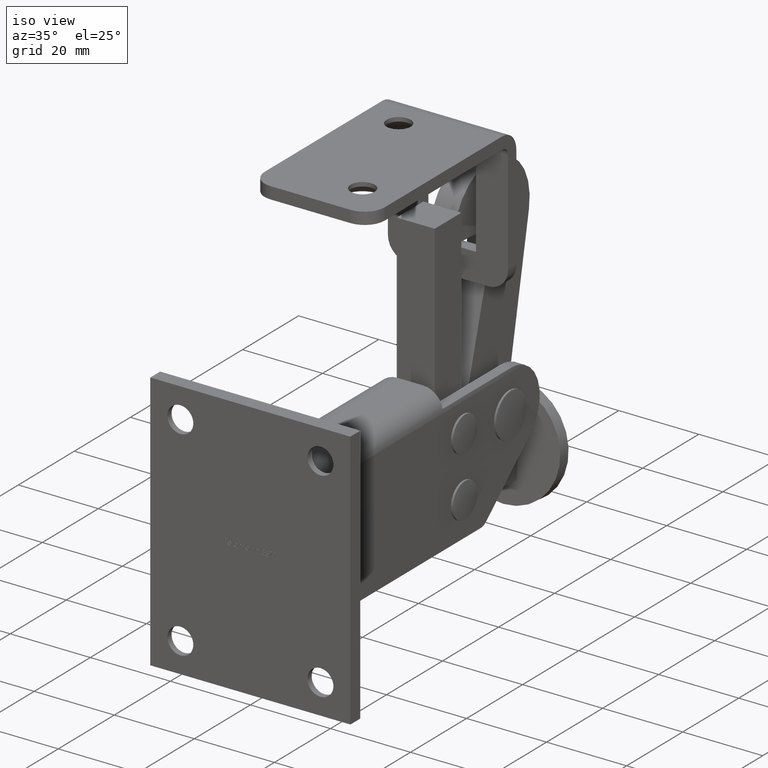
[diagram: clean part render]
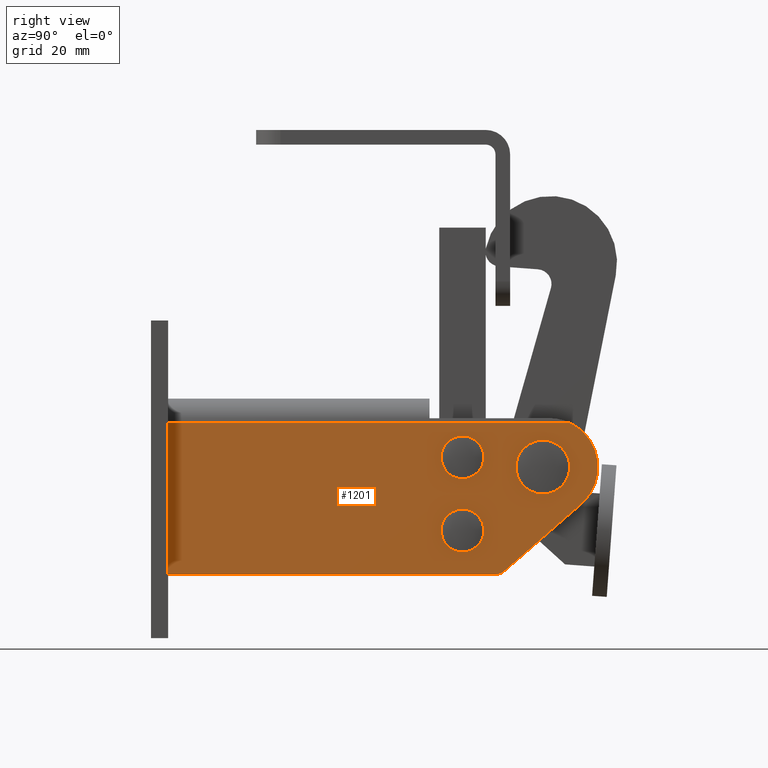
[diagram: tour spotlight — one face highlighted and labeled with its STEP entity id]
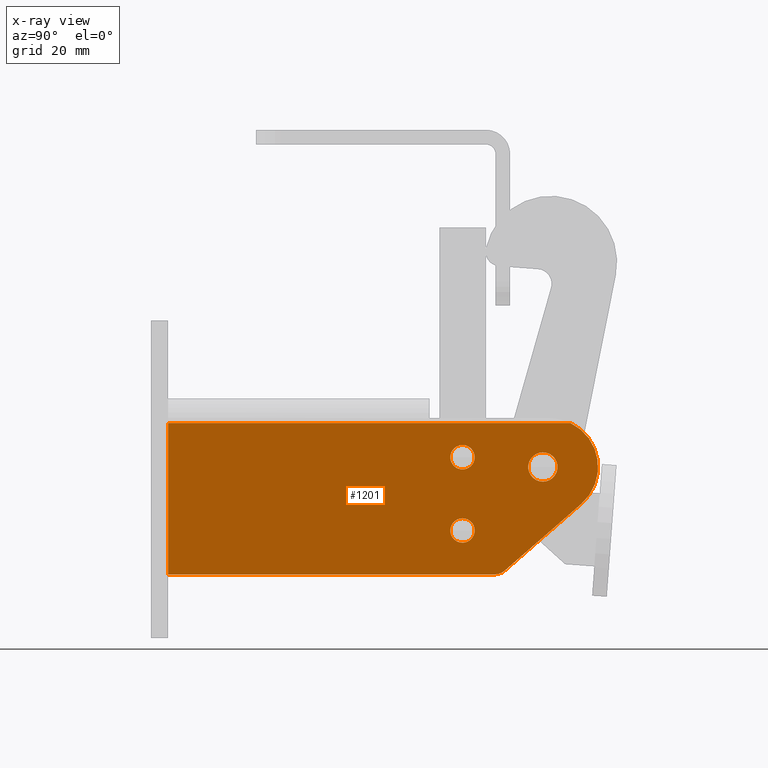
[diagram: x-ray of the same camera — body ghosted, this tour face saturated]
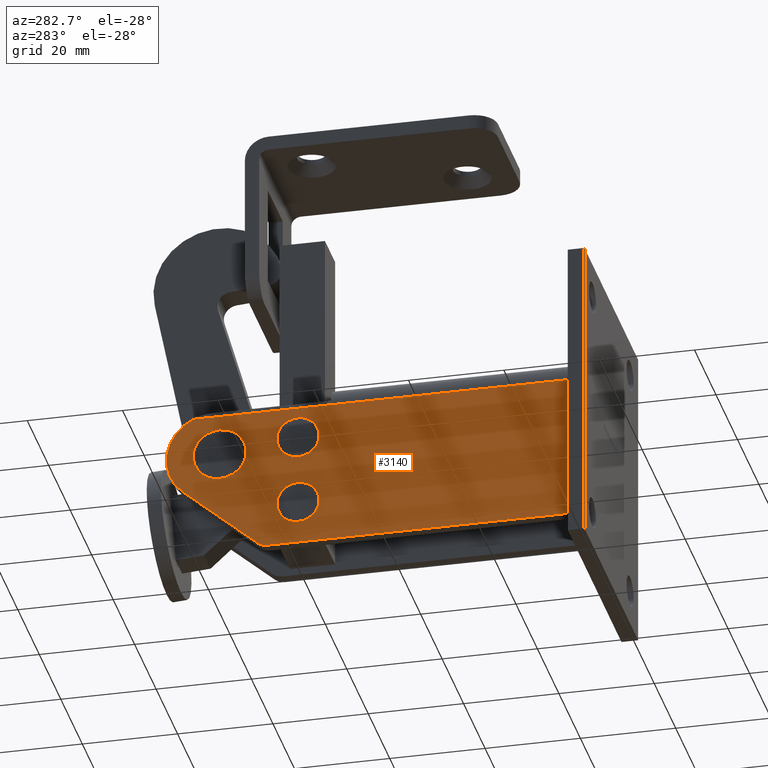
[diagram: tour spotlight — one face highlighted and labeled with its STEP entity id]
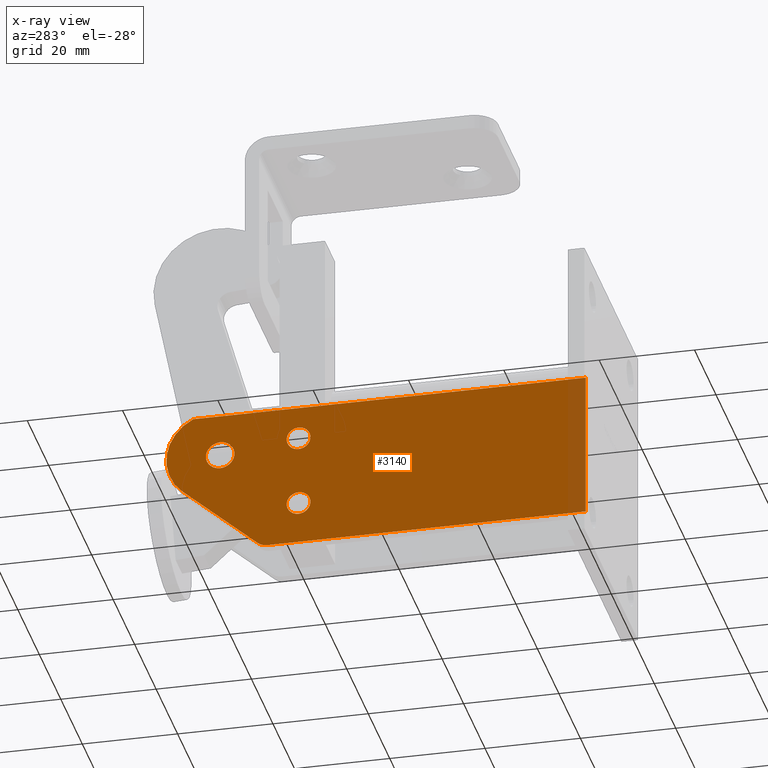
[diagram: x-ray of the same camera — body ghosted, this tour face saturated]
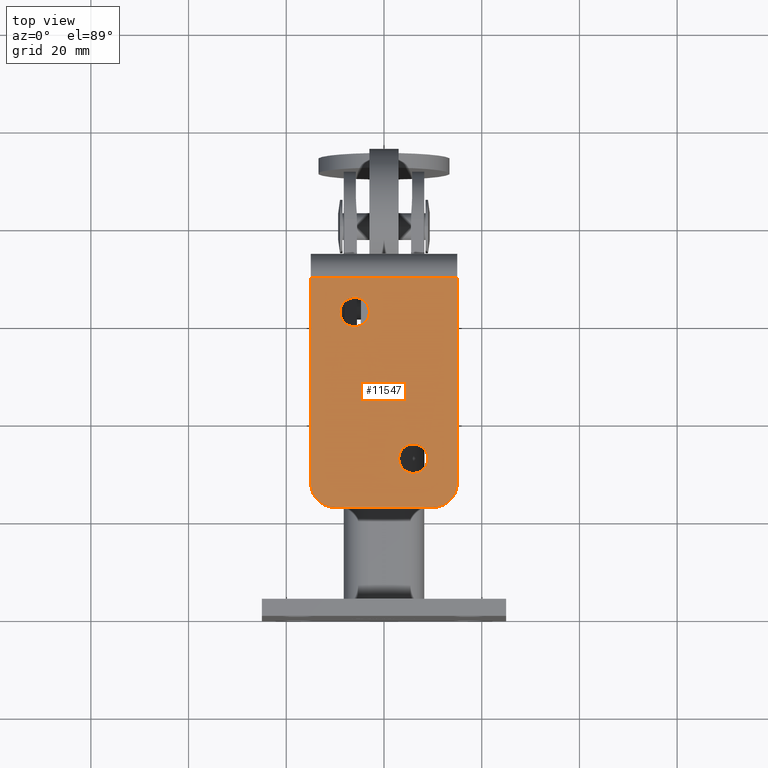
[diagram: tour spotlight — one face highlighted and labeled with its STEP entity id]
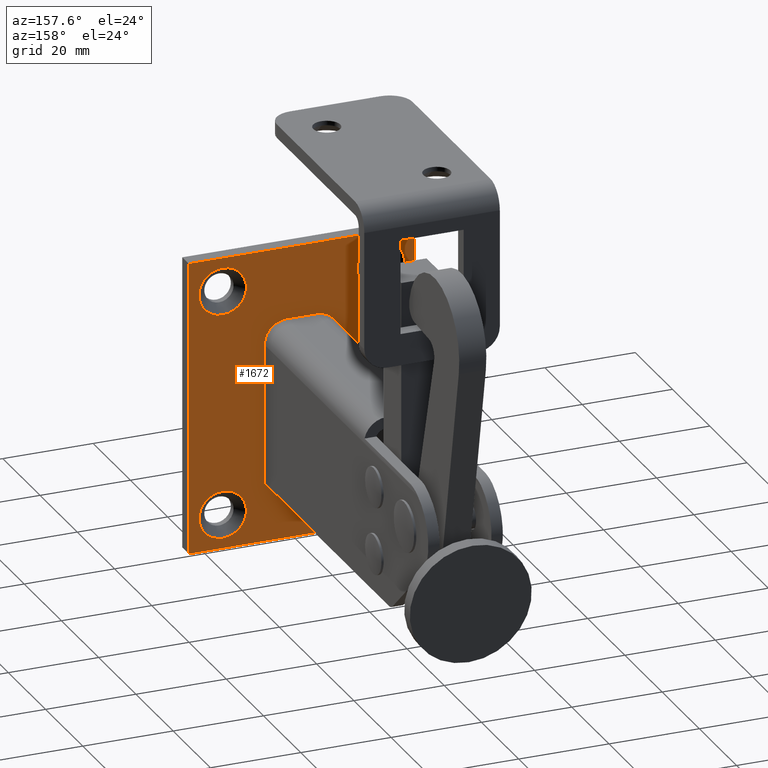
[diagram: tour spotlight — one face highlighted and labeled with its STEP entity id]
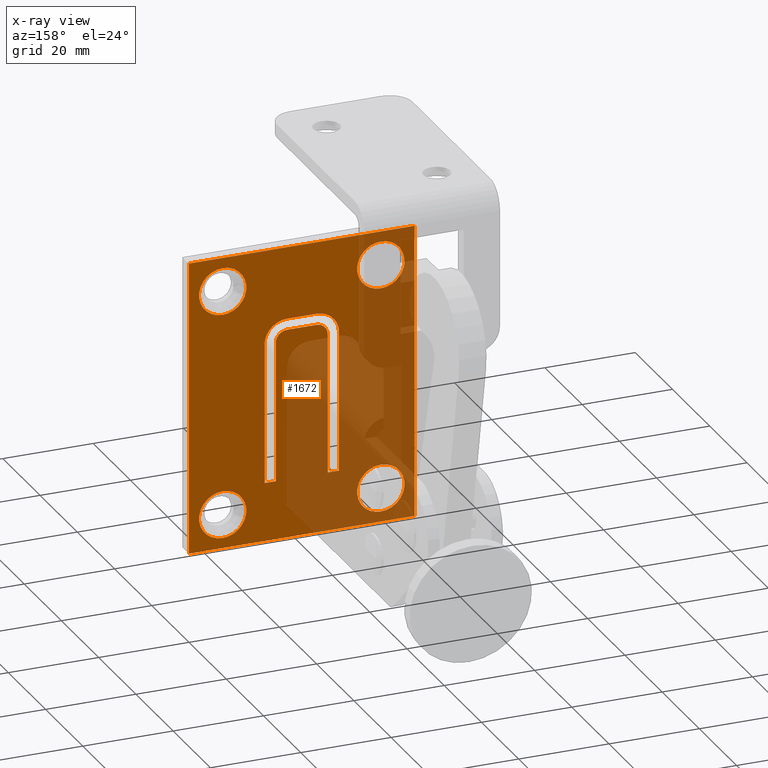
[diagram: x-ray of the same camera — body ghosted, this tour face saturated]
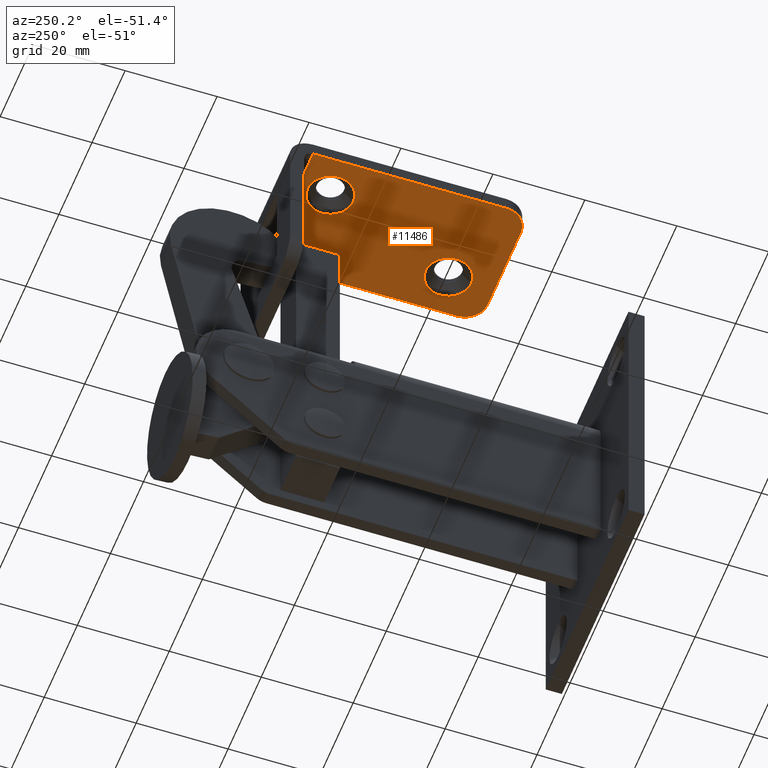
[diagram: tour spotlight — one face highlighted and labeled with its STEP entity id]
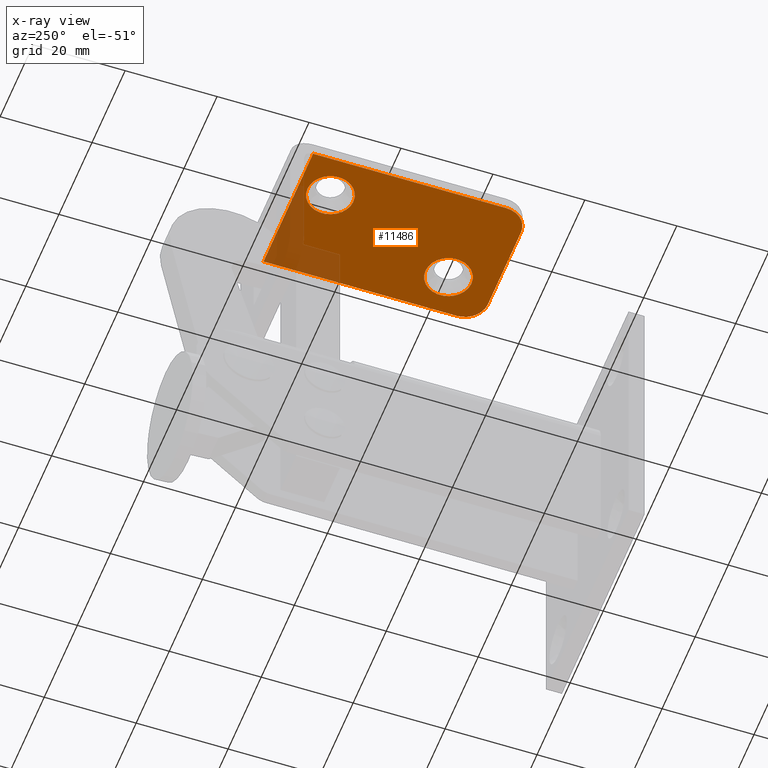
[diagram: x-ray of the same camera — body ghosted, this tour face saturated]
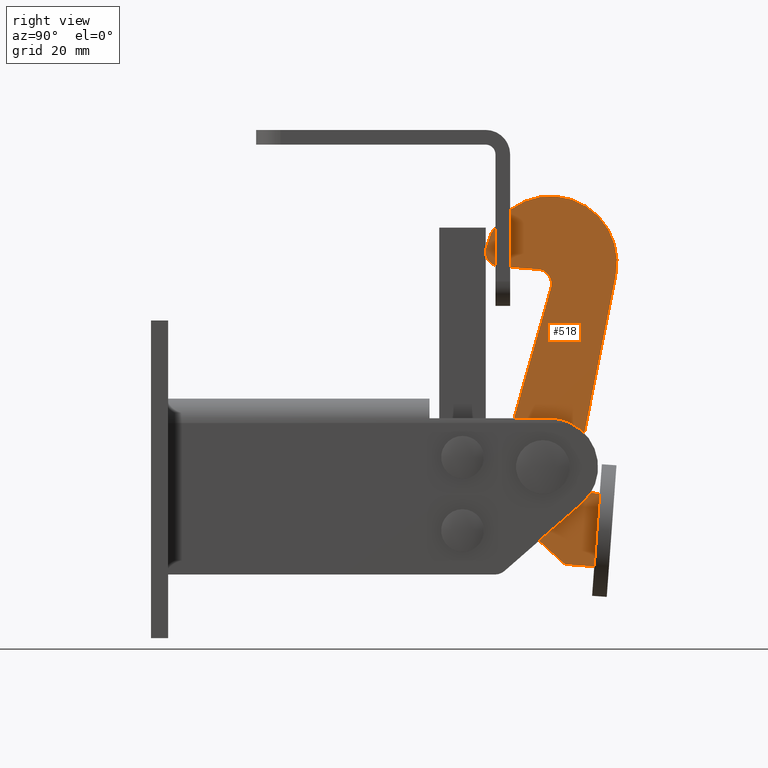
[diagram: tour spotlight — one face highlighted and labeled with its STEP entity id]
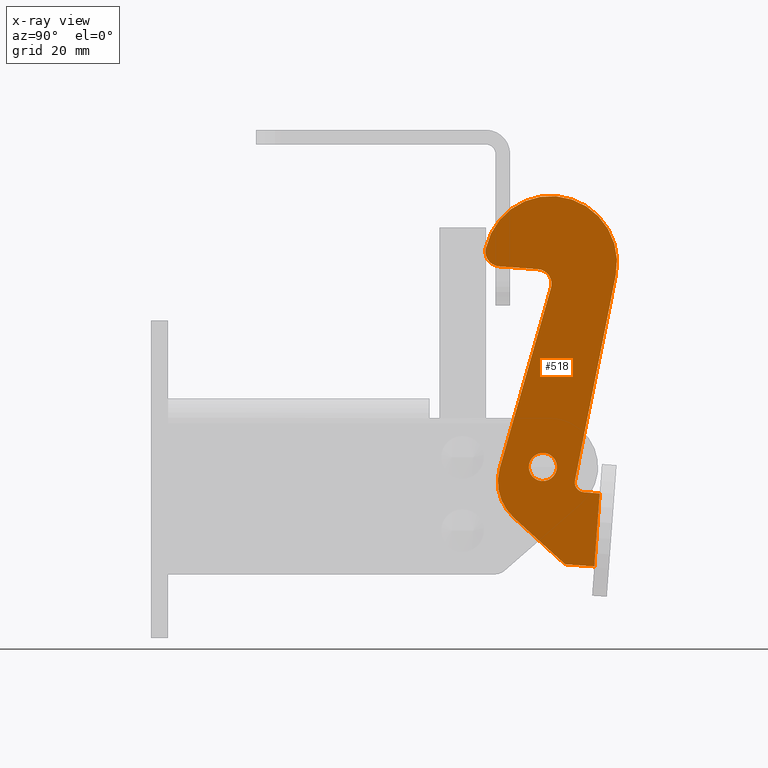
[diagram: x-ray of the same camera — body ghosted, this tour face saturated]
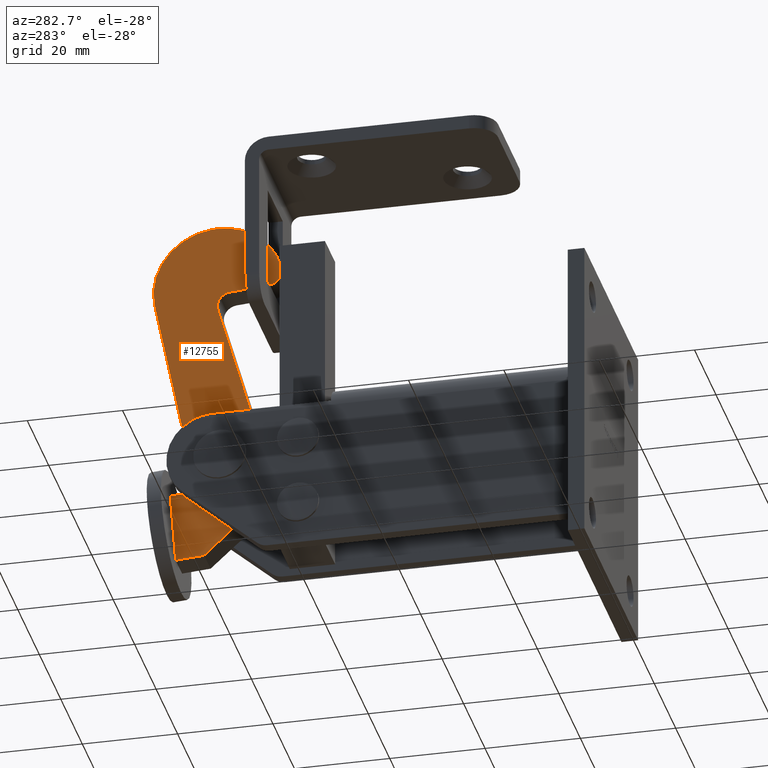
[diagram: tour spotlight — one face highlighted and labeled with its STEP entity id]
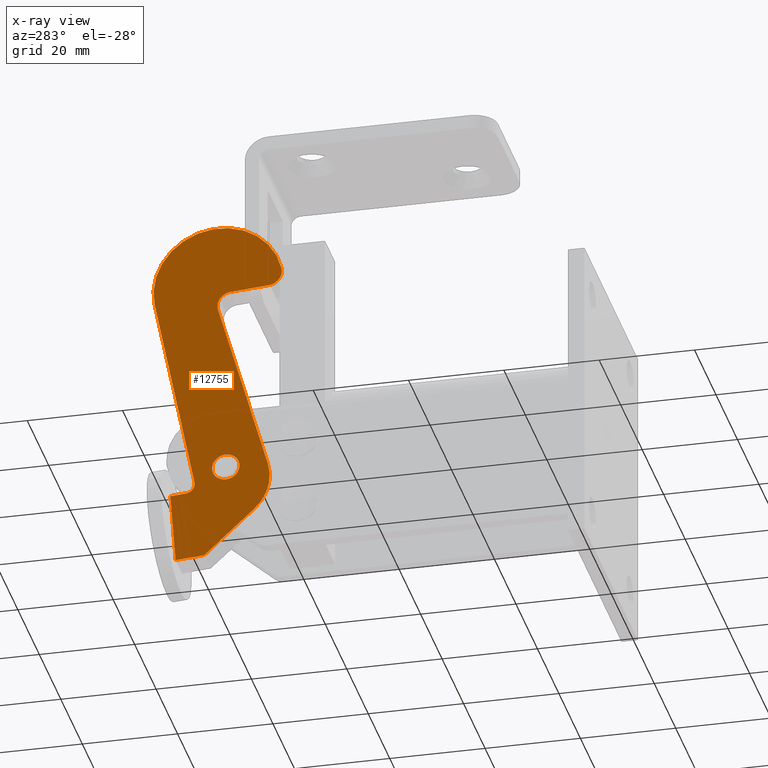
[diagram: x-ray of the same camera — body ghosted, this tour face saturated]
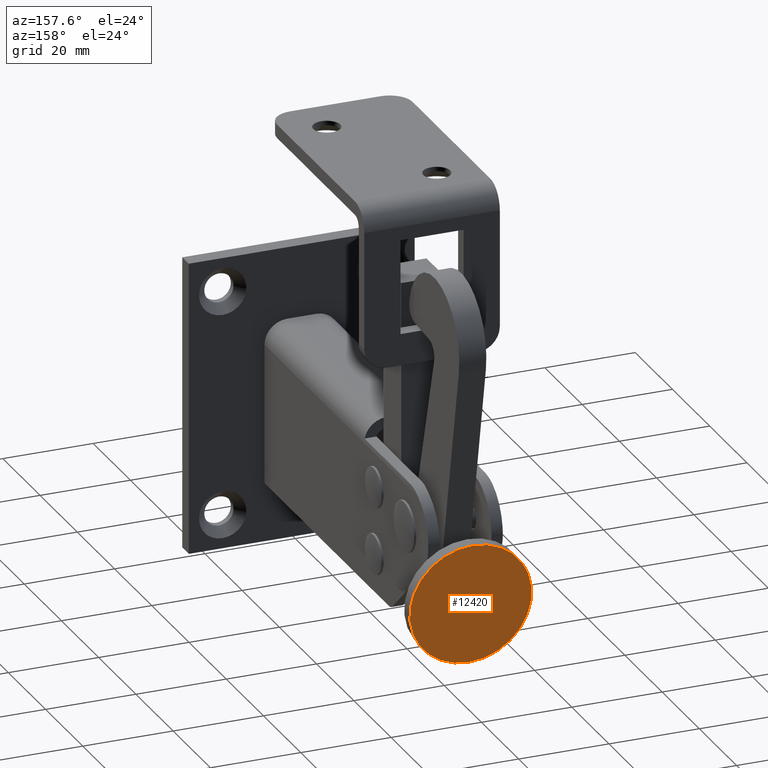
[diagram: tour spotlight — one face highlighted and labeled with its STEP entity id]
A machine part: a face-by-face anatomy tour. The part has 274 B-rep faces; the first image is the clean iso view, then the 8 largest visible faces are spotlighted one at a time (largest first), each with its STEP entity span.

Face 1 — right view, entity #1201. An x-ray twin of the same camera follows (body ghosted, this face saturated) — the face is partly hidden behind the body. In plain terms, the highlighted planar face has unit normal (-1, 0, 0).
Definition (entity closure, byte-faithful):
#137 = DIRECTION ( 'NONE',  ( -0.0000000000000000000, -1.000000000000000000, -0.0000000000000000000 ) ) ;
#154 = CARTESIAN_POINT ( 'NONE',  ( 8.249999999999996400, 3.500000000000000000, -19.50000000000000700 ) ) ;
#291 = AXIS2_PLACEMENT_3D ( 'NONE', #7609, #11631, #1495 ) ;
#386 = CARTESIAN_POINT ( 'NONE',  ( 8.249999999999996400, 72.34760273972604200, -18.76027397260274700 ) ) ;
#678 = EDGE_CURVE ( 'NONE', #8844, #7054, #2376, .T. ) ;
#887 = CARTESIAN_POINT ( 'NONE',  ( 8.249999999999996400, 93.50000000000000000, -19.50000000000000700 ) ) ;
#1068 = LINE ( 'NONE', #3306, #6458 ) ;
#1201 = ADVANCED_FACE ( 'NONE', ( #3302, #6439, #8688, #9485 ), #6519, .F. ) ;
#1495 = DIRECTION ( 'NONE',  ( 0.0000000000000000000, -4.625929269271486900E-015, 1.000000000000000000 ) ) ;
#2299 = DIRECTION ( 'NONE',  ( 1.734723475976805400E-016, -1.387778780781444300E-015, 1.000000000000000000 ) ) ;
#2376 = CIRCLE ( 'NONE', #291, 2.999999999999999100 ) ;
#2482 = CARTESIAN_POINT ( 'NONE',  ( 8.249999999999982200, 88.07534246575343700, -5.034246575342480800 ) ) ;
#2531 = CARTESIAN_POINT ( 'NONE',  ( 8.249999999999996400, 63.75000000000000000, 4.500000000000003600 ) ) ;
#2644 = CARTESIAN_POINT ( 'NONE',  ( 8.249999999999996400, 63.75000000000000000, 7.000000000000006200 ) ) ;
#2682 = LINE ( 'NONE', #3266, #5844 ) ;
#2857 = VERTEX_POINT ( 'NONE', #12532 ) ;
#2920 = CIRCLE ( 'NONE', #9962, 2.500000000000002200 ) ;
#3020 = ORIENTED_EDGE ( 'NONE', *, *, #7413, .F. ) ;
#3241 = CIRCLE ( 'NONE', #12736, 3.000000000000002700 ) ;
#3250 = ORIENTED_EDGE ( 'NONE', *, *, #678, .T. ) ;
#3266 = CARTESIAN_POINT ( 'NONE',  ( 8.249999999999996400, 93.50000000000000000, -19.50000000000000700 ) ) ;
#3302 = FACE_BOUND ( 'NONE', #3727, .T. ) ;
#3306 = CARTESIAN_POINT ( 'NONE',  ( 8.249999999999996400, 3.500000000000000000, -19.50000000000000700 ) ) ;
#3390 = VERTEX_POINT ( 'NONE', #5655 ) ;
#3635 = DIRECTION ( 'NONE',  ( -1.000000000000000000, 0.0000000000000000000, 1.678764654171104000E-016 ) ) ;
#3727 = EDGE_LOOP ( 'NONE', ( #6322 ) ) ;
#4099 = VERTEX_POINT ( 'NONE', #2482 ) ;
#4166 = ORIENTED_EDGE ( 'NONE', *, *, #11116, .T. ) ;
#4287 = CARTESIAN_POINT ( 'NONE',  ( 8.249999999999996400, 81.49999999999998600, 2.499999999999993300 ) ) ;
#4290 = VECTOR ( 'NONE', #4298, 1000.000000000000000 ) ;
#4298 = DIRECTION ( 'NONE',  ( -0.0000000000000000000, -1.000000000000000000, -0.0000000000000000000 ) ) ;
#4543 = EDGE_CURVE ( 'NONE', #8774, #8774, #3241, .T. ) ;
#4552 = EDGE_LOOP ( 'NONE', ( #7908 ) ) ;
#4663 = DIRECTION ( 'NONE',  ( 0.0000000000000000000, 0.0000000000000000000, 1.000000000000000000 ) ) ;
#4831 = ORIENTED_EDGE ( 'NONE', *, *, #5455, .T. ) ;
#4899 = CIRCLE ( 'NONE', #7268, 10.00000000000001100 ) ;
#4955 = ORIENTED_EDGE ( 'NONE', *, *, #4543, .T. ) ;
#5196 = EDGE_CURVE ( 'NONE', #4099, #6426, #4899, .T. ) ;
#5272 = DIRECTION ( 'NONE',  ( 0.0000000000000000000, 0.0000000000000000000, 1.000000000000000000 ) ) ;
#5290 = EDGE_LOOP ( 'NONE', ( #4955 ) ) ;
#5452 = EDGE_CURVE ( 'NONE', #6426, #2857, #7098, .T. ) ;
#5455 = EDGE_CURVE ( 'NONE', #2857, #10259, #1068, .T. ) ;
#5655 = CARTESIAN_POINT ( 'NONE',  ( 8.249999999999989300, 63.75000000000000000, -7.999999999999994700 ) ) ;
#5844 = VECTOR ( 'NONE', #137, 1000.000000000000000 ) ;
#5854 = EDGE_LOOP ( 'NONE', ( #3020, #3250, #4166, #12062, #7421, #4831 ) ) ;
#6056 = DIRECTION ( 'NONE',  ( 1.103845252057711500E-016, 0.7534246575342468100, 0.6575342465753421000 ) ) ;
#6139 = DIRECTION ( 'NONE',  ( -1.000000000000000000, 0.0000000000000000000, 1.678764654171104000E-016 ) ) ;
#6322 = ORIENTED_EDGE ( 'NONE', *, *, #11267, .T. ) ;
#6384 = DIRECTION ( 'NONE',  ( -1.678764654171103800E-016, -0.0000000000000000000, -1.000000000000000000 ) ) ;
#6426 = VERTEX_POINT ( 'NONE', #13073 ) ;
#6439 = FACE_BOUND ( 'NONE', #4552, .T. ) ;
#6458 = VECTOR ( 'NONE', #6384, 1000.000000000000000 ) ;
#6519 = PLANE ( 'NONE',  #8995 ) ;
#7054 = VERTEX_POINT ( 'NONE', #386 ) ;
#7098 = LINE ( 'NONE', #12381, #4290 ) ;
#7196 = DIRECTION ( 'NONE',  ( -1.000000000000000000, 0.0000000000000000000, 1.678764654171104000E-016 ) ) ;
#7268 = AXIS2_PLACEMENT_3D ( 'NONE', #4287, #12415, #2299 ) ;
#7413 = EDGE_CURVE ( 'NONE', #8844, #10259, #2682, .T. ) ;
#7421 = ORIENTED_EDGE ( 'NONE', *, *, #5452, .T. ) ;
#7609 = CARTESIAN_POINT ( 'NONE',  ( 8.249999999999996400, 70.37500000000000000, -16.50000000000000700 ) ) ;
#7908 = ORIENTED_EDGE ( 'NONE', *, *, #12487, .T. ) ;
#8057 = CARTESIAN_POINT ( 'NONE',  ( 8.249999999999998200, 83.98827172077314200, -8.601144680052556200 ) ) ;
#8618 = VERTEX_POINT ( 'NONE', #2644 ) ;
#8688 = FACE_BOUND ( 'NONE', #5290, .T. ) ;
#8774 = VERTEX_POINT ( 'NONE', #11496 ) ;
#8844 = VERTEX_POINT ( 'NONE', #9713 ) ;
#8995 = AXIS2_PLACEMENT_3D ( 'NONE', #887, #7196, #12331 ) ;
#9485 = FACE_OUTER_BOUND ( 'NONE', #5854, .T. ) ;
#9713 = CARTESIAN_POINT ( 'NONE',  ( 8.249999999999996400, 70.37500000000001400, -19.50000000000000700 ) ) ;
#9876 = AXIS2_PLACEMENT_3D ( 'NONE', #12266, #6139, #5272 ) ;
#9962 = AXIS2_PLACEMENT_3D ( 'NONE', #2531, #11698, #11654 ) ;
#10259 = VERTEX_POINT ( 'NONE', #154 ) ;
#10768 = LINE ( 'NONE', #8057, #11552 ) ;
#11116 = EDGE_CURVE ( 'NONE', #7054, #4099, #10768, .T. ) ;
#11267 = EDGE_CURVE ( 'NONE', #3390, #3390, #11785, .T. ) ;
#11496 = CARTESIAN_POINT ( 'NONE',  ( 8.249999999999996400, 80.20000000000000300, 5.500000000000006200 ) ) ;
#11552 = VECTOR ( 'NONE', #6056, 1000.000000000000100 ) ;
#11631 = DIRECTION ( 'NONE',  ( 1.000000000000000000, -0.0000000000000000000, -1.678764654171104000E-016 ) ) ;
#11654 = DIRECTION ( 'NONE',  ( 0.0000000000000000000, 0.0000000000000000000, 1.000000000000000000 ) ) ;
#11698 = DIRECTION ( 'NONE',  ( -1.000000000000000000, 0.0000000000000000000, 1.678764654171104000E-016 ) ) ;
#11724 = CARTESIAN_POINT ( 'NONE',  ( 8.249999999999996400, 80.20000000000000300, 2.500000000000004000 ) ) ;
#11785 = CIRCLE ( 'NONE', #9876, 2.500000000000000400 ) ;
#12062 = ORIENTED_EDGE ( 'NONE', *, *, #5196, .T. ) ;
#12266 = CARTESIAN_POINT ( 'NONE',  ( 8.249999999999989300, 63.75000000000000000, -10.49999999999999500 ) ) ;
#12331 = DIRECTION ( 'NONE',  ( 1.678764654171104000E-016, 0.0000000000000000000, 1.000000000000000000 ) ) ;
#12381 = CARTESIAN_POINT ( 'NONE',  ( 8.250000000000001800, 93.50000000000000000, 11.49999999999999100 ) ) ;
#12415 = DIRECTION ( 'NONE',  ( 1.000000000000000000, -0.0000000000000000000, -1.678764654171104000E-016 ) ) ;
#12487 = EDGE_CURVE ( 'NONE', #8618, #8618, #2920, .T. ) ;
#12532 = CARTESIAN_POINT ( 'NONE',  ( 8.250000000000001800, 3.500000000000000000, 11.49999999999999100 ) ) ;
#12736 = AXIS2_PLACEMENT_3D ( 'NONE', #11724, #3635, #4663 ) ;
#13073 = CARTESIAN_POINT ( 'NONE',  ( 8.249999999999998200, 85.85889894354069400, 11.49999999999998800 ) ) ;

Face 2 — auxiliary view, entity #3140. An x-ray twin of the same camera follows (body ghosted, this face saturated) — the face is partly hidden behind the body. In plain terms, the highlighted planar face has unit normal (1, 0, -0).
Definition (entity closure, byte-faithful):
#85 = CARTESIAN_POINT ( 'NONE',  ( -8.250000000000000000, 70.37500000000001400, -19.50000000000000400 ) ) ;
#100 = LINE ( 'NONE', #2918, #7459 ) ;
#206 = DIRECTION ( 'NONE',  ( 0.0000000000000000000, 0.0000000000000000000, -1.000000000000000000 ) ) ;
#250 = CARTESIAN_POINT ( 'NONE',  ( -8.250000000000000000, 63.75000000000000000, -10.49999999999999500 ) ) ;
#280 = LINE ( 'NONE', #12240, #8588 ) ;
#310 = VERTEX_POINT ( 'NONE', #4629 ) ;
#337 = DIRECTION ( 'NONE',  ( 5.595882180570346700E-017, -0.0000000000000000000, 1.000000000000000000 ) ) ;
#651 = DIRECTION ( 'NONE',  ( -1.000000000000000000, -0.0000000000000000000, 5.595882180570347900E-017 ) ) ;
#652 = EDGE_CURVE ( 'NONE', #12375, #12375, #1270, .T. ) ;
#713 = DIRECTION ( 'NONE',  ( -3.679484173525706200E-017, -0.7534246575342468100, -0.6575342465753421000 ) ) ;
#731 = VERTEX_POINT ( 'NONE', #2596 ) ;
#899 = AXIS2_PLACEMENT_3D ( 'NONE', #8840, #651, #12948 ) ;
#980 = VERTEX_POINT ( 'NONE', #12651 ) ;
#1270 = CIRCLE ( 'NONE', #1926, 3.000000000000002700 ) ;
#1570 = CARTESIAN_POINT ( 'NONE',  ( -8.249999999999998200, 99.34574967160820300, 4.801745167948935100 ) ) ;
#1620 = VECTOR ( 'NONE', #8975, 1000.000000000000000 ) ;
#1649 = AXIS2_PLACEMENT_3D ( 'NONE', #8955, #3900, #8864 ) ;
#1676 = CARTESIAN_POINT ( 'NONE',  ( -8.250000000000000000, 3.500000000000000000, -19.50000000000000400 ) ) ;
#1683 = ORIENTED_EDGE ( 'NONE', *, *, #652, .T. ) ;
#1699 = ORIENTED_EDGE ( 'NONE', *, *, #7935, .T. ) ;
#1926 = AXIS2_PLACEMENT_3D ( 'NONE', #8324, #2199, #7437 ) ;
#2010 = AXIS2_PLACEMENT_3D ( 'NONE', #2447, #4637, #5463 ) ;
#2199 = DIRECTION ( 'NONE',  ( 1.000000000000000000, 0.0000000000000000000, -5.595882180570347900E-017 ) ) ;
#2362 = CIRCLE ( 'NONE', #2010, 2.999999999999999100 ) ;
#2431 = CIRCLE ( 'NONE', #899, 10.00000000000001100 ) ;
#2447 = CARTESIAN_POINT ( 'NONE',  ( -8.250000000000000000, 70.37500000000001400, -16.50000000000000400 ) ) ;
#2596 = CARTESIAN_POINT ( 'NONE',  ( -8.250000000000007100, 88.07534246575343700, -5.034246575342480800 ) ) ;
#2918 = CARTESIAN_POINT ( 'NONE',  ( -8.250000000000000000, 93.50000000000000000, -19.50000000000000400 ) ) ;
#3140 = ADVANCED_FACE ( 'NONE', ( #12347, #11376, #4046, #11334 ), #10070, .F. ) ;
#3169 = EDGE_LOOP ( 'NONE', ( #11590, #7478, #6671, #8665, #3794, #1699 ) ) ;
#3333 = VECTOR ( 'NONE', #713, 1000.000000000000100 ) ;
#3794 = ORIENTED_EDGE ( 'NONE', *, *, #4893, .F. ) ;
#3852 = LINE ( 'NONE', #6827, #1620 ) ;
#3900 = DIRECTION ( 'NONE',  ( 1.000000000000000000, 0.0000000000000000000, -5.595882180570347900E-017 ) ) ;
#4046 = FACE_BOUND ( 'NONE', #5032, .T. ) ;
#4629 = CARTESIAN_POINT ( 'NONE',  ( -8.249999999999996400, 85.85889894354068000, 11.49999999999999500 ) ) ;
#4637 = DIRECTION ( 'NONE',  ( -1.000000000000000000, -0.0000000000000000000, 5.595882180570347900E-017 ) ) ;
#4893 = EDGE_CURVE ( 'NONE', #310, #7899, #3852, .T. ) ;
#5032 = EDGE_LOOP ( 'NONE', ( #1683 ) ) ;
#5118 = VERTEX_POINT ( 'NONE', #5303 ) ;
#5303 = CARTESIAN_POINT ( 'NONE',  ( -8.250000000000000000, 63.75000000000000000, 2.000000000000001800 ) ) ;
#5378 = DIRECTION ( 'NONE',  ( 1.000000000000000000, 0.0000000000000000000, -5.595882180570347900E-017 ) ) ;
#5463 = DIRECTION ( 'NONE',  ( 0.0000000000000000000, 4.625929269271486900E-015, -1.000000000000000000 ) ) ;
#5760 = DIRECTION ( 'NONE',  ( -0.0000000000000000000, -1.000000000000000000, -0.0000000000000000000 ) ) ;
#6210 = CARTESIAN_POINT ( 'NONE',  ( -8.249999999999996400, 3.500000000000000000, 11.49999999999999500 ) ) ;
#6299 = EDGE_CURVE ( 'NONE', #8266, #7899, #280, .T. ) ;
#6396 = EDGE_LOOP ( 'NONE', ( #6421 ) ) ;
#6421 = ORIENTED_EDGE ( 'NONE', *, *, #11758, .T. ) ;
#6644 = EDGE_CURVE ( 'NONE', #9491, #8266, #100, .T. ) ;
#6671 = ORIENTED_EDGE ( 'NONE', *, *, #6644, .T. ) ;
#6827 = CARTESIAN_POINT ( 'NONE',  ( -8.249999999999996400, 93.50000000000000000, 11.49999999999999500 ) ) ;
#6898 = EDGE_CURVE ( 'NONE', #5118, #5118, #12409, .T. ) ;
#7136 = EDGE_CURVE ( 'NONE', #731, #10972, #8877, .T. ) ;
#7309 = CARTESIAN_POINT ( 'NONE',  ( -8.250000000000000000, 80.20000000000000300, -0.4999999999999987200 ) ) ;
#7346 = DIRECTION ( 'NONE',  ( 0.0000000000000000000, 0.0000000000000000000, -1.000000000000000000 ) ) ;
#7437 = DIRECTION ( 'NONE',  ( 0.0000000000000000000, 0.0000000000000000000, -1.000000000000000000 ) ) ;
#7459 = VECTOR ( 'NONE', #5760, 1000.000000000000000 ) ;
#7478 = ORIENTED_EDGE ( 'NONE', *, *, #7503, .T. ) ;
#7503 = EDGE_CURVE ( 'NONE', #10972, #9491, #2362, .T. ) ;
#7531 = CIRCLE ( 'NONE', #10124, 2.500000000000000400 ) ;
#7899 = VERTEX_POINT ( 'NONE', #6210 ) ;
#7935 = EDGE_CURVE ( 'NONE', #310, #731, #2431, .T. ) ;
#8266 = VERTEX_POINT ( 'NONE', #1676 ) ;
#8323 = DIRECTION ( 'NONE',  ( 1.000000000000000000, 0.0000000000000000000, -5.595882180570347900E-017 ) ) ;
#8324 = CARTESIAN_POINT ( 'NONE',  ( -8.250000000000000000, 80.20000000000000300, 2.500000000000004000 ) ) ;
#8588 = VECTOR ( 'NONE', #337, 1000.000000000000000 ) ;
#8665 = ORIENTED_EDGE ( 'NONE', *, *, #6299, .T. ) ;
#8840 = CARTESIAN_POINT ( 'NONE',  ( -8.250000000000000000, 81.49999999999998600, 2.499999999999993300 ) ) ;
#8864 = DIRECTION ( 'NONE',  ( -5.595882180570347900E-017, 0.0000000000000000000, -1.000000000000000000 ) ) ;
#8877 = LINE ( 'NONE', #1570, #3333 ) ;
#8955 = CARTESIAN_POINT ( 'NONE',  ( -8.249999999999998200, 93.50000000000000000, 11.49999999999999300 ) ) ;
#8975 = DIRECTION ( 'NONE',  ( -0.0000000000000000000, -1.000000000000000000, -0.0000000000000000000 ) ) ;
#9491 = VERTEX_POINT ( 'NONE', #85 ) ;
#10070 = PLANE ( 'NONE',  #1649 ) ;
#10119 = ORIENTED_EDGE ( 'NONE', *, *, #6898, .T. ) ;
#10124 = AXIS2_PLACEMENT_3D ( 'NONE', #250, #5378, #7346 ) ;
#10804 = EDGE_LOOP ( 'NONE', ( #10119 ) ) ;
#10972 = VERTEX_POINT ( 'NONE', #13153 ) ;
#11334 = FACE_OUTER_BOUND ( 'NONE', #3169, .T. ) ;
#11376 = FACE_BOUND ( 'NONE', #10804, .T. ) ;
#11590 = ORIENTED_EDGE ( 'NONE', *, *, #7136, .T. ) ;
#11758 = EDGE_CURVE ( 'NONE', #980, #980, #7531, .T. ) ;
#12240 = CARTESIAN_POINT ( 'NONE',  ( -8.249999999999998200, 3.500000000000000000, 11.49999999999999300 ) ) ;
#12347 = FACE_BOUND ( 'NONE', #6396, .T. ) ;
#12375 = VERTEX_POINT ( 'NONE', #7309 ) ;
#12399 = CARTESIAN_POINT ( 'NONE',  ( -8.250000000000000000, 63.75000000000000000, 4.500000000000003600 ) ) ;
#12409 = CIRCLE ( 'NONE', #12419, 2.500000000000002200 ) ;
#12419 = AXIS2_PLACEMENT_3D ( 'NONE', #12399, #8323, #206 ) ;
#12651 = CARTESIAN_POINT ( 'NONE',  ( -8.250000000000000000, 63.75000000000000000, -12.99999999999999600 ) ) ;
#12948 = DIRECTION ( 'NONE',  ( 0.0000000000000000000, -1.387778780781444300E-015, -1.000000000000000000 ) ) ;
#13153 = CARTESIAN_POINT ( 'NONE',  ( -8.250000000000000000, 72.34760273972604200, -18.76027397260274700 ) ) ;

Face 3 — top view, entity #11547. In plain terms, the highlighted planar face has unit normal (0, -0, -1).
Definition (entity closure, byte-faithful):
#30 = AXIS2_PLACEMENT_3D ( 'NONE', #9162, #5082, #3098 ) ;
#610 = DIRECTION ( 'NONE',  ( 0.0000000000000000000, 0.0000000000000000000, 1.000000000000000000 ) ) ;
#1309 = DIRECTION ( 'NONE',  ( 0.0000000000000000000, -1.000000000000000000, 7.381802025433221500E-017 ) ) ;
#1370 = CARTESIAN_POINT ( 'NONE',  ( 9.999999999999998200, 0.0000000000000000000, 18.00000000000000000 ) ) ;
#1457 = EDGE_CURVE ( 'NONE', #10214, #10214, #4698, .T. ) ;
#1548 = EDGE_CURVE ( 'NONE', #4361, #11842, #3099, .T. ) ;
#1549 = VERTEX_POINT ( 'NONE', #4777 ) ;
#1759 = ORIENTED_EDGE ( 'NONE', *, *, #7593, .T. ) ;
#1775 = VERTEX_POINT ( 'NONE', #7613 ) ;
#1809 = DIRECTION ( 'NONE',  ( -1.000000000000000000, -0.0000000000000000000, -0.0000000000000000000 ) ) ;
#1946 = CARTESIAN_POINT ( 'NONE',  ( 9.999999999999998200, 4.999999999999998200, 18.00000000000000000 ) ) ;
#2092 = AXIS2_PLACEMENT_3D ( 'NONE', #2399, #10322, #12379 ) ;
#2399 = CARTESIAN_POINT ( 'NONE',  ( -6.000000000000000000, 39.99999999999999300, 18.00000000000000000 ) ) ;
#2701 = AXIS2_PLACEMENT_3D ( 'NONE', #1946, #5006, #2710 ) ;
#2710 = DIRECTION ( 'NONE',  ( 0.0000000000000000000, 1.000000000000000000, 0.0000000000000000000 ) ) ;
#2729 = ORIENTED_EDGE ( 'NONE', *, *, #6916, .F. ) ;
#2851 = CARTESIAN_POINT ( 'NONE',  ( 15.00000000000000000, 0.0000000000000000000, 18.00000000000000000 ) ) ;
#3098 = DIRECTION ( 'NONE',  ( 0.0000000000000000000, 1.000000000000000000, -7.381802025433221500E-017 ) ) ;
#3099 = LINE ( 'NONE', #3796, #10098 ) ;
#3412 = CARTESIAN_POINT ( 'NONE',  ( -9.999999999999998200, 0.0000000000000000000, 18.00000000000000000 ) ) ;
#3524 = EDGE_LOOP ( 'NONE', ( #5639 ) ) ;
#3706 = CARTESIAN_POINT ( 'NONE',  ( 6.000000000000000000, 10.00000000000000000, 18.00000000000000000 ) ) ;
#3796 = CARTESIAN_POINT ( 'NONE',  ( 15.00000000000000000, 47.00000000000000000, 17.99999999999999600 ) ) ;
#4092 = CARTESIAN_POINT ( 'NONE',  ( 15.00000000000000000, 47.00000000000000000, 17.99999999999999600 ) ) ;
#4361 = VERTEX_POINT ( 'NONE', #4092 ) ;
#4419 = VERTEX_POINT ( 'NONE', #1370 ) ;
#4698 = CIRCLE ( 'NONE', #6510, 3.000000000000000900 ) ;
#4777 = CARTESIAN_POINT ( 'NONE',  ( -15.00000000000000000, 4.999999999999997300, 18.00000000000000000 ) ) ;
#5006 = DIRECTION ( 'NONE',  ( -0.0000000000000000000, 7.381802025433221500E-017, 1.000000000000000000 ) ) ;
#5082 = DIRECTION ( 'NONE',  ( 0.0000000000000000000, -7.381802025433221500E-017, -1.000000000000000000 ) ) ;
#5084 = EDGE_CURVE ( 'NONE', #11842, #1549, #13070, .T. ) ;
#5119 = ORIENTED_EDGE ( 'NONE', *, *, #1548, .T. ) ;
#5131 = DIRECTION ( 'NONE',  ( 0.0000000000000000000, 1.000000000000000000, 0.0000000000000000000 ) ) ;
#5149 = ORIENTED_EDGE ( 'NONE', *, *, #6747, .T. ) ;
#5333 = ORIENTED_EDGE ( 'NONE', *, *, #7502, .F. ) ;
#5639 = ORIENTED_EDGE ( 'NONE', *, *, #1457, .F. ) ;
#5686 = EDGE_LOOP ( 'NONE', ( #12205, #5149, #9787, #1759, #2729, #5119 ) ) ;
#5737 = DIRECTION ( 'NONE',  ( 1.000000000000000000, 0.0000000000000000000, 0.0000000000000000000 ) ) ;
#6143 = CARTESIAN_POINT ( 'NONE',  ( -15.00000000000000000, 47.00000000000000000, 17.99999999999999600 ) ) ;
#6324 = VECTOR ( 'NONE', #1309, 1000.000000000000000 ) ;
#6510 = AXIS2_PLACEMENT_3D ( 'NONE', #3706, #610, #5737 ) ;
#6621 = CIRCLE ( 'NONE', #2701, 5.000000000000000000 ) ;
#6725 = FACE_BOUND ( 'NONE', #3524, .T. ) ;
#6747 = EDGE_CURVE ( 'NONE', #1549, #8936, #12243, .T. ) ;
#6916 = EDGE_CURVE ( 'NONE', #4361, #1775, #7607, .T. ) ;
#7024 = DIRECTION ( 'NONE',  ( -0.0000000000000000000, 7.381802025433221500E-017, 1.000000000000000000 ) ) ;
#7069 = PLANE ( 'NONE',  #30 ) ;
#7086 = DIRECTION ( 'NONE',  ( 0.0000000000000000000, -1.000000000000000000, 7.381802025433221500E-017 ) ) ;
#7492 = EDGE_LOOP ( 'NONE', ( #5333 ) ) ;
#7502 = EDGE_CURVE ( 'NONE', #11325, #11325, #13187, .T. ) ;
#7593 = EDGE_CURVE ( 'NONE', #4419, #1775, #6621, .T. ) ;
#7607 = LINE ( 'NONE', #10469, #6324 ) ;
#7613 = CARTESIAN_POINT ( 'NONE',  ( 15.00000000000000000, 4.999999999999997300, 18.00000000000000000 ) ) ;
#7962 = EDGE_CURVE ( 'NONE', #4419, #8936, #7977, .T. ) ;
#7977 = LINE ( 'NONE', #2851, #10867 ) ;
#8521 = CARTESIAN_POINT ( 'NONE',  ( 9.000000000000001800, 10.00000000000000000, 18.00000000000000000 ) ) ;
#8802 = FACE_OUTER_BOUND ( 'NONE', #5686, .T. ) ;
#8936 = VERTEX_POINT ( 'NONE', #3412 ) ;
#9162 = CARTESIAN_POINT ( 'NONE',  ( 15.00000000000000000, 47.00000000000000000, 17.99999999999999600 ) ) ;
#9787 = ORIENTED_EDGE ( 'NONE', *, *, #7962, .F. ) ;
#9933 = DIRECTION ( 'NONE',  ( -1.000000000000000000, -0.0000000000000000000, -0.0000000000000000000 ) ) ;
#9941 = AXIS2_PLACEMENT_3D ( 'NONE', #12214, #7024, #5131 ) ;
#10098 = VECTOR ( 'NONE', #9933, 1000.000000000000000 ) ;
#10214 = VERTEX_POINT ( 'NONE', #8521 ) ;
#10322 = DIRECTION ( 'NONE',  ( 0.0000000000000000000, 0.0000000000000000000, 1.000000000000000000 ) ) ;
#10371 = VECTOR ( 'NONE', #7086, 1000.000000000000000 ) ;
#10469 = CARTESIAN_POINT ( 'NONE',  ( 15.00000000000000000, 47.00000000000000000, 17.99999999999999600 ) ) ;
#10867 = VECTOR ( 'NONE', #1809, 1000.000000000000000 ) ;
#11325 = VERTEX_POINT ( 'NONE', #12491 ) ;
#11398 = CARTESIAN_POINT ( 'NONE',  ( -15.00000000000000000, 47.00000000000000000, 17.99999999999999600 ) ) ;
#11547 = ADVANCED_FACE ( 'NONE', ( #6725, #12799, #8802 ), #7069, .F. ) ;
#11842 = VERTEX_POINT ( 'NONE', #11398 ) ;
#12205 = ORIENTED_EDGE ( 'NONE', *, *, #5084, .T. ) ;
#12214 = CARTESIAN_POINT ( 'NONE',  ( -9.999999999999998200, 5.000000000000000000, 18.00000000000000000 ) ) ;
#12243 = CIRCLE ( 'NONE', #9941, 5.000000000000000000 ) ;
#12379 = DIRECTION ( 'NONE',  ( 1.000000000000000000, 0.0000000000000000000, 0.0000000000000000000 ) ) ;
#12491 = CARTESIAN_POINT ( 'NONE',  ( -2.999999999999996900, 39.99999999999999300, 18.00000000000000000 ) ) ;
#12799 = FACE_BOUND ( 'NONE', #7492, .T. ) ;
#13070 = LINE ( 'NONE', #6143, #10371 ) ;
#13187 = CIRCLE ( 'NONE', #2092, 3.000000000000003100 ) ;

Face 4 — auxiliary view, entity #1672. An x-ray twin of the same camera follows (body ghosted, this face saturated) — the face is partly hidden behind the body. In plain terms, the highlighted planar face has unit normal (0, 1, 0).
Definition (entity closure, byte-faithful):
#78 = VECTOR ( 'NONE', #4325, 1000.000000000000000 ) ;
#88 = VERTEX_POINT ( 'NONE', #1009 ) ;
#139 = CARTESIAN_POINT ( 'NONE',  ( -3.249999999999996000, 3.500000000000000000, 11.49999999999999300 ) ) ;
#149 = VERTEX_POINT ( 'NONE', #7273 ) ;
#154 = CARTESIAN_POINT ( 'NONE',  ( 8.249999999999996400, 3.500000000000000000, -19.50000000000000700 ) ) ;
#225 = EDGE_CURVE ( 'NONE', #10026, #9736, #12439, .T. ) ;
#280 = LINE ( 'NONE', #12240, #8588 ) ;
#334 = EDGE_CURVE ( 'NONE', #10664, #2857, #10024, .T. ) ;
#337 = DIRECTION ( 'NONE',  ( 5.595882180570346700E-017, -0.0000000000000000000, 1.000000000000000000 ) ) ;
#439 = AXIS2_PLACEMENT_3D ( 'NONE', #2163, #11192, #10305 ) ;
#528 = ORIENTED_EDGE ( 'NONE', *, *, #9831, .F. ) ;
#542 = AXIS2_PLACEMENT_3D ( 'NONE', #7358, #1273, #12745 ) ;
#627 = VERTEX_POINT ( 'NONE', #9442 ) ;
#777 = CARTESIAN_POINT ( 'NONE',  ( 3.249999999999998700, 3.500000000000000000, 11.49999999999999300 ) ) ;
#828 = DIRECTION ( 'NONE',  ( 0.0000000000000000000, 0.0000000000000000000, 1.000000000000000000 ) ) ;
#1009 = CARTESIAN_POINT ( 'NONE',  ( 3.249999999999998200, 3.500000000000000000, 13.99999999999999300 ) ) ;
#1068 = LINE ( 'NONE', #3306, #6458 ) ;
#1266 = DIRECTION ( 'NONE',  ( 1.398970545142586300E-016, 0.0000000000000000000, 1.000000000000000000 ) ) ;
#1273 = DIRECTION ( 'NONE',  ( 0.0000000000000000000, 1.000000000000000000, 0.0000000000000000000 ) ) ;
#1311 = VERTEX_POINT ( 'NONE', #12694 ) ;
#1344 = VERTEX_POINT ( 'NONE', #11527 ) ;
#1374 = EDGE_CURVE ( 'NONE', #9253, #9253, #4996, .T. ) ;
#1464 = CARTESIAN_POINT ( 'NONE',  ( 17.50000000000000000, 3.500000000000000000, -25.00000000000000000 ) ) ;
#1483 = VECTOR ( 'NONE', #11417, 1000.000000000000000 ) ;
#1489 = DIRECTION ( 'NONE',  ( -0.0000000000000000000, -1.000000000000000000, -0.0000000000000000000 ) ) ;
#1542 = CARTESIAN_POINT ( 'NONE',  ( -8.250000000000000000, 3.500000000000000000, -19.50000000000000400 ) ) ;
#1544 = CARTESIAN_POINT ( 'NONE',  ( 25.00000000000000400, 3.500000000000000000, -32.50000000000000000 ) ) ;
#1563 = DIRECTION ( 'NONE',  ( 1.067522139062650400E-016, 0.0000000000000000000, 1.000000000000000000 ) ) ;
#1565 = DIRECTION ( 'NONE',  ( 0.0000000000000000000, 0.0000000000000000000, 1.000000000000000000 ) ) ;
#1588 = DIRECTION ( 'NONE',  ( -1.958558763199621000E-016, 0.0000000000000000000, -1.000000000000000000 ) ) ;
#1627 = VERTEX_POINT ( 'NONE', #5266 ) ;
#1636 = DIRECTION ( 'NONE',  ( -0.0000000000000000000, -1.000000000000000000, -0.0000000000000000000 ) ) ;
#1666 = ORIENTED_EDGE ( 'NONE', *, *, #3753, .F. ) ;
#1672 = ADVANCED_FACE ( 'NONE', ( #4060, #9119, #5467, #6407, #8810, #4394 ), #4324, .T. ) ;
#1676 = CARTESIAN_POINT ( 'NONE',  ( -8.250000000000000000, 3.500000000000000000, -19.50000000000000400 ) ) ;
#1695 = LINE ( 'NONE', #5484, #12203 ) ;
#1767 = DIRECTION ( 'NONE',  ( 0.0000000000000000000, 1.000000000000000000, 0.0000000000000000000 ) ) ;
#1796 = ORIENTED_EDGE ( 'NONE', *, *, #6299, .F. ) ;
#1897 = LINE ( 'NONE', #1544, #11932 ) ;
#2130 = ORIENTED_EDGE ( 'NONE', *, *, #6469, .T. ) ;
#2163 = CARTESIAN_POINT ( 'NONE',  ( -3.249999999999996000, 3.500000000000000000, 11.49999999999999300 ) ) ;
#2178 = LINE ( 'NONE', #5638, #12677 ) ;
#2414 = ORIENTED_EDGE ( 'NONE', *, *, #225, .F. ) ;
#2480 = EDGE_CURVE ( 'NONE', #12133, #12133, #5604, .T. ) ;
#2655 = ORIENTED_EDGE ( 'NONE', *, *, #5473, .F. ) ;
#2690 = CARTESIAN_POINT ( 'NONE',  ( 25.00000000000000400, 3.500000000000000000, -32.50000000000000000 ) ) ;
#2696 = AXIS2_PLACEMENT_3D ( 'NONE', #777, #1767, #828 ) ;
#2759 = VECTOR ( 'NONE', #8730, 1000.000000000000000 ) ;
#2857 = VERTEX_POINT ( 'NONE', #12532 ) ;
#3306 = CARTESIAN_POINT ( 'NONE',  ( 8.249999999999996400, 3.500000000000000000, -19.50000000000000700 ) ) ;
#3313 = AXIS2_PLACEMENT_3D ( 'NONE', #5427, #1489, #1565 ) ;
#3322 = LINE ( 'NONE', #10672, #11093 ) ;
#3372 = CARTESIAN_POINT ( 'NONE',  ( -17.50000000000000000, 3.500000000000000000, -19.75000000000000400 ) ) ;
#3506 = ORIENTED_EDGE ( 'NONE', *, *, #2480, .T. ) ;
#3554 = LINE ( 'NONE', #5399, #1483 ) ;
#3679 = DIRECTION ( 'NONE',  ( -1.067522139062650400E-016, -0.0000000000000000000, -1.000000000000000000 ) ) ;
#3753 = EDGE_CURVE ( 'NONE', #88, #1344, #10470, .T. ) ;
#3854 = DIRECTION ( 'NONE',  ( -0.0000000000000000000, -1.000000000000000000, -0.0000000000000000000 ) ) ;
#3999 = ORIENTED_EDGE ( 'NONE', *, *, #5625, .F. ) ;
#4001 = VERTEX_POINT ( 'NONE', #2690 ) ;
#4012 = EDGE_CURVE ( 'NONE', #11934, #88, #10624, .T. ) ;
#4036 = CARTESIAN_POINT ( 'NONE',  ( -24.99999999999998900, 3.500000000000000000, 32.50000000000000000 ) ) ;
#4060 = FACE_BOUND ( 'NONE', #8556, .T. ) ;
#4077 = ORIENTED_EDGE ( 'NONE', *, *, #334, .F. ) ;
#4133 = DIRECTION ( 'NONE',  ( 1.000000000000000000, 0.0000000000000000000, 0.0000000000000000000 ) ) ;
#4174 = CARTESIAN_POINT ( 'NONE',  ( -3.249999999999996000, 3.500000000000000000, 16.49999999999999300 ) ) ;
#4278 = EDGE_CURVE ( 'NONE', #7899, #8420, #7369, .T. ) ;
#4324 = PLANE ( 'NONE',  #542 ) ;
#4325 = DIRECTION ( 'NONE',  ( -1.000000000000000000, 0.0000000000000000000, 0.0000000000000000000 ) ) ;
#4394 = FACE_BOUND ( 'NONE', #5940, .T. ) ;
#4482 = AXIS2_PLACEMENT_3D ( 'NONE', #9645, #1636, #6641 ) ;
#4542 = DIRECTION ( 'NONE',  ( -0.0000000000000000000, -1.000000000000000000, -0.0000000000000000000 ) ) ;
#4875 = EDGE_LOOP ( 'NONE', ( #13195 ) ) ;
#4996 = CIRCLE ( 'NONE', #3313, 5.249999999999997300 ) ;
#5266 = CARTESIAN_POINT ( 'NONE',  ( 17.50000000000000000, 3.500000000000000000, -19.75000000000000400 ) ) ;
#5399 = CARTESIAN_POINT ( 'NONE',  ( -24.99999999999999600, 3.500000000000000000, -32.50000000000000000 ) ) ;
#5427 = CARTESIAN_POINT ( 'NONE',  ( -17.50000000000000000, 3.500000000000000000, -25.00000000000000000 ) ) ;
#5455 = EDGE_CURVE ( 'NONE', #2857, #10259, #1068, .T. ) ;
#5467 = FACE_BOUND ( 'NONE', #12464, .T. ) ;
#5473 = EDGE_CURVE ( 'NONE', #1344, #10026, #6311, .T. ) ;
#5484 = CARTESIAN_POINT ( 'NONE',  ( 5.749999999999997300, 3.500000000000000000, -19.50000000000001100 ) ) ;
#5604 = CIRCLE ( 'NONE', #4482, 5.249999999999997300 ) ;
#5625 = EDGE_CURVE ( 'NONE', #8420, #10664, #3322, .T. ) ;
#5638 = CARTESIAN_POINT ( 'NONE',  ( -24.99999999999999600, 3.500000000000000000, -32.50000000000000000 ) ) ;
#5725 = VECTOR ( 'NONE', #1588, 1000.000000000000000 ) ;
#5940 = EDGE_LOOP ( 'NONE', ( #5981, #4077, #3999, #8098, #1796, #10080, #2414, #2655, #1666, #6334, #9163, #528 ) ) ;
#5981 = ORIENTED_EDGE ( 'NONE', *, *, #5455, .F. ) ;
#6078 = VECTOR ( 'NONE', #4133, 1000.000000000000000 ) ;
#6137 = AXIS2_PLACEMENT_3D ( 'NONE', #8910, #3854, #12371 ) ;
#6164 = VECTOR ( 'NONE', #1266, 1000.000000000000000 ) ;
#6210 = CARTESIAN_POINT ( 'NONE',  ( -8.249999999999996400, 3.500000000000000000, 11.49999999999999500 ) ) ;
#6296 = VERTEX_POINT ( 'NONE', #8269 ) ;
#6299 = EDGE_CURVE ( 'NONE', #8266, #7899, #280, .T. ) ;
#6311 = CIRCLE ( 'NONE', #8640, 2.500000000000000400 ) ;
#6333 = DIRECTION ( 'NONE',  ( 0.0000000000000000000, 0.0000000000000000000, 1.000000000000000000 ) ) ;
#6334 = ORIENTED_EDGE ( 'NONE', *, *, #4012, .F. ) ;
#6384 = DIRECTION ( 'NONE',  ( -1.678764654171103800E-016, -0.0000000000000000000, -1.000000000000000000 ) ) ;
#6407 = FACE_BOUND ( 'NONE', #8822, .T. ) ;
#6458 = VECTOR ( 'NONE', #6384, 1000.000000000000000 ) ;
#6469 = EDGE_CURVE ( 'NONE', #1627, #1627, #13047, .T. ) ;
#6549 = EDGE_CURVE ( 'NONE', #7736, #4001, #1897, .T. ) ;
#6641 = DIRECTION ( 'NONE',  ( 0.0000000000000000000, 0.0000000000000000000, 1.000000000000000000 ) ) ;
#6838 = ORIENTED_EDGE ( 'NONE', *, *, #6549, .T. ) ;
#6882 = EDGE_CURVE ( 'NONE', #149, #11934, #10645, .T. ) ;
#7273 = CARTESIAN_POINT ( 'NONE',  ( 5.749999999999997300, 3.500000000000000000, -19.50000000000001100 ) ) ;
#7358 = CARTESIAN_POINT ( 'NONE',  ( 0.0000000000000000000, 3.500000000000000000, 0.0000000000000000000 ) ) ;
#7369 = CIRCLE ( 'NONE', #439, 5.000000000000001800 ) ;
#7603 = CARTESIAN_POINT ( 'NONE',  ( 5.750000000000000000, 3.500000000000000000, 11.49999999999998900 ) ) ;
#7736 = VERTEX_POINT ( 'NONE', #10847 ) ;
#7899 = VERTEX_POINT ( 'NONE', #6210 ) ;
#8098 = ORIENTED_EDGE ( 'NONE', *, *, #4278, .F. ) ;
#8235 = CARTESIAN_POINT ( 'NONE',  ( 5.749999999999997300, 3.500000000000000000, -19.50000000000001100 ) ) ;
#8266 = VERTEX_POINT ( 'NONE', #1676 ) ;
#8269 = CARTESIAN_POINT ( 'NONE',  ( -24.99999999999998900, 3.500000000000000000, 32.50000000000000000 ) ) ;
#8420 = VERTEX_POINT ( 'NONE', #4174 ) ;
#8556 = EDGE_LOOP ( 'NONE', ( #3506 ) ) ;
#8588 = VECTOR ( 'NONE', #337, 1000.000000000000000 ) ;
#8630 = CIRCLE ( 'NONE', #11040, 5.249999999999997300 ) ;
#8640 = AXIS2_PLACEMENT_3D ( 'NONE', #139, #11389, #10413 ) ;
#8646 = ORIENTED_EDGE ( 'NONE', *, *, #10471, .T. ) ;
#8682 = EDGE_CURVE ( 'NONE', #1311, #1311, #8630, .T. ) ;
#8730 = DIRECTION ( 'NONE',  ( -1.000000000000000000, -0.0000000000000000000, 2.775557561562893700E-015 ) ) ;
#8810 = FACE_OUTER_BOUND ( 'NONE', #11940, .T. ) ;
#8822 = EDGE_LOOP ( 'NONE', ( #10335 ) ) ;
#8910 = CARTESIAN_POINT ( 'NONE',  ( 3.249999999999998700, 3.500000000000000000, 11.49999999999999300 ) ) ;
#9034 = CARTESIAN_POINT ( 'NONE',  ( 17.50000000000000000, 3.500000000000000000, 25.00000000000000000 ) ) ;
#9119 = FACE_BOUND ( 'NONE', #4875, .T. ) ;
#9163 = ORIENTED_EDGE ( 'NONE', *, *, #6882, .F. ) ;
#9241 = AXIS2_PLACEMENT_3D ( 'NONE', #1464, #4542, #6333 ) ;
#9253 = VERTEX_POINT ( 'NONE', #3372 ) ;
#9442 = CARTESIAN_POINT ( 'NONE',  ( -24.99999999999999600, 3.500000000000000000, -32.50000000000000000 ) ) ;
#9443 = LINE ( 'NONE', #4036, #6078 ) ;
#9535 = CARTESIAN_POINT ( 'NONE',  ( -17.50000000000000000, 3.500000000000000000, 30.25000000000000000 ) ) ;
#9645 = CARTESIAN_POINT ( 'NONE',  ( -17.50000000000000000, 3.500000000000000000, 25.00000000000000000 ) ) ;
#9736 = VERTEX_POINT ( 'NONE', #12219 ) ;
#9831 = EDGE_CURVE ( 'NONE', #10259, #149, #1695, .T. ) ;
#9855 = CARTESIAN_POINT ( 'NONE',  ( -5.749999999999996400, 3.500000000000000000, 11.49999999999999300 ) ) ;
#10024 = CIRCLE ( 'NONE', #2696, 5.000000000000000900 ) ;
#10026 = VERTEX_POINT ( 'NONE', #9855 ) ;
#10080 = ORIENTED_EDGE ( 'NONE', *, *, #12888, .F. ) ;
#10259 = VERTEX_POINT ( 'NONE', #154 ) ;
#10305 = DIRECTION ( 'NONE',  ( 0.0000000000000000000, 0.0000000000000000000, -1.000000000000000000 ) ) ;
#10335 = ORIENTED_EDGE ( 'NONE', *, *, #1374, .T. ) ;
#10413 = DIRECTION ( 'NONE',  ( 0.0000000000000000000, 0.0000000000000000000, -1.000000000000000000 ) ) ;
#10432 = DIRECTION ( 'NONE',  ( -1.000000000000000000, -0.0000000000000000000, -1.387778780781445900E-015 ) ) ;
#10470 = LINE ( 'NONE', #13148, #78 ) ;
#10471 = EDGE_CURVE ( 'NONE', #627, #6296, #2178, .T. ) ;
#10579 = DIRECTION ( 'NONE',  ( 1.000000000000000000, -0.0000000000000000000, -0.0000000000000000000 ) ) ;
#10624 = CIRCLE ( 'NONE', #6137, 2.500000000000002200 ) ;
#10645 = LINE ( 'NONE', #8235, #6164 ) ;
#10664 = VERTEX_POINT ( 'NONE', #12550 ) ;
#10672 = CARTESIAN_POINT ( 'NONE',  ( 3.250000000000000400, 3.500000000000000000, 16.49999999999999300 ) ) ;
#10847 = CARTESIAN_POINT ( 'NONE',  ( 25.00000000000001100, 3.500000000000000000, 32.50000000000000000 ) ) ;
#10954 = DIRECTION ( 'NONE',  ( -0.0000000000000000000, -1.000000000000000000, -0.0000000000000000000 ) ) ;
#11040 = AXIS2_PLACEMENT_3D ( 'NONE', #9034, #10954, #12032 ) ;
#11093 = VECTOR ( 'NONE', #10579, 1000.000000000000000 ) ;
#11192 = DIRECTION ( 'NONE',  ( 0.0000000000000000000, 1.000000000000000000, -0.0000000000000000000 ) ) ;
#11331 = CARTESIAN_POINT ( 'NONE',  ( -5.749999999999996400, 3.500000000000000000, 11.49999999999999300 ) ) ;
#11389 = DIRECTION ( 'NONE',  ( -0.0000000000000000000, -1.000000000000000000, 0.0000000000000000000 ) ) ;
#11417 = DIRECTION ( 'NONE',  ( -1.000000000000000000, -0.0000000000000000000, -0.0000000000000000000 ) ) ;
#11527 = CARTESIAN_POINT ( 'NONE',  ( -3.249999999999995600, 3.500000000000000000, 13.99999999999999300 ) ) ;
#11684 = EDGE_CURVE ( 'NONE', #6296, #7736, #9443, .T. ) ;
#11697 = ORIENTED_EDGE ( 'NONE', *, *, #11684, .T. ) ;
#11932 = VECTOR ( 'NONE', #3679, 1000.000000000000000 ) ;
#11934 = VERTEX_POINT ( 'NONE', #7603 ) ;
#11940 = EDGE_LOOP ( 'NONE', ( #6838, #12572, #8646, #11697 ) ) ;
#12032 = DIRECTION ( 'NONE',  ( 0.0000000000000000000, 0.0000000000000000000, 1.000000000000000000 ) ) ;
#12133 = VERTEX_POINT ( 'NONE', #9535 ) ;
#12203 = VECTOR ( 'NONE', #10432, 1000.000000000000000 ) ;
#12219 = CARTESIAN_POINT ( 'NONE',  ( -5.750000000000002700, 3.500000000000000000, -19.50000000000001100 ) ) ;
#12240 = CARTESIAN_POINT ( 'NONE',  ( -8.249999999999998200, 3.500000000000000000, 11.49999999999999300 ) ) ;
#12371 = DIRECTION ( 'NONE',  ( 0.0000000000000000000, 0.0000000000000000000, 1.000000000000000000 ) ) ;
#12439 = LINE ( 'NONE', #11331, #5725 ) ;
#12464 = EDGE_LOOP ( 'NONE', ( #2130 ) ) ;
#12532 = CARTESIAN_POINT ( 'NONE',  ( 8.250000000000001800, 3.500000000000000000, 11.49999999999999100 ) ) ;
#12550 = CARTESIAN_POINT ( 'NONE',  ( 3.250000000000000400, 3.500000000000000000, 16.49999999999999300 ) ) ;
#12572 = ORIENTED_EDGE ( 'NONE', *, *, #12756, .T. ) ;
#12677 = VECTOR ( 'NONE', #1563, 1000.000000000000000 ) ;
#12694 = CARTESIAN_POINT ( 'NONE',  ( 17.50000000000000000, 3.500000000000000000, 30.25000000000000000 ) ) ;
#12745 = DIRECTION ( 'NONE',  ( 0.0000000000000000000, -0.0000000000000000000, 1.000000000000000000 ) ) ;
#12756 = EDGE_CURVE ( 'NONE', #4001, #627, #3554, .T. ) ;
#12778 = LINE ( 'NONE', #1542, #2759 ) ;
#12888 = EDGE_CURVE ( 'NONE', #9736, #8266, #12778, .T. ) ;
#13047 = CIRCLE ( 'NONE', #9241, 5.249999999999997300 ) ;
#13148 = CARTESIAN_POINT ( 'NONE',  ( 3.249999999999998200, 3.500000000000000000, 13.99999999999999300 ) ) ;
#13195 = ORIENTED_EDGE ( 'NONE', *, *, #8682, .T. ) ;

Face 5 — auxiliary view, entity #11486. An x-ray twin of the same camera follows (body ghosted, this face saturated) — the face is partly hidden behind the body. In plain terms, the highlighted planar face has unit normal (0, 0, 1).
Definition (entity closure, byte-faithful):
#37 = DIRECTION ( 'NONE',  ( -0.0000000000000000000, 2.214540607629966800E-016, 1.000000000000000000 ) ) ;
#269 = CARTESIAN_POINT ( 'NONE',  ( 9.999999999999998200, 4.999999999999997300, 15.00000000000000200 ) ) ;
#279 = CARTESIAN_POINT ( 'NONE',  ( -15.00000000000000000, 4.999999999999997300, 15.00000000000000200 ) ) ;
#646 = CARTESIAN_POINT ( 'NONE',  ( 15.00000000000000000, 47.00000000000000000, 14.99999999999999300 ) ) ;
#752 = VECTOR ( 'NONE', #7588, 1000.000000000000000 ) ;
#881 = CARTESIAN_POINT ( 'NONE',  ( -15.00000000000000000, 47.00000000000000000, 14.99999999999999300 ) ) ;
#918 = VERTEX_POINT ( 'NONE', #12241 ) ;
#1018 = ORIENTED_EDGE ( 'NONE', *, *, #7746, .F. ) ;
#1339 = FACE_OUTER_BOUND ( 'NONE', #3414, .T. ) ;
#1761 = CARTESIAN_POINT ( 'NONE',  ( 15.00000000000000000, 4.999999999999997300, 15.00000000000000200 ) ) ;
#1948 = EDGE_CURVE ( 'NONE', #8088, #10552, #10568, .T. ) ;
#1962 = CARTESIAN_POINT ( 'NONE',  ( -15.00000000000000000, 47.00000000000000000, 14.99999999999999300 ) ) ;
#2150 = EDGE_LOOP ( 'NONE', ( #5672 ) ) ;
#2280 = VECTOR ( 'NONE', #3853, 1000.000000000000000 ) ;
#2341 = DIRECTION ( 'NONE',  ( 0.0000000000000000000, -1.000000000000000000, 3.469446951953614200E-016 ) ) ;
#2370 = ORIENTED_EDGE ( 'NONE', *, *, #1948, .T. ) ;
#2707 = CARTESIAN_POINT ( 'NONE',  ( -9.999999999999998200, 4.999999999999999100, 15.00000000000000200 ) ) ;
#3133 = VERTEX_POINT ( 'NONE', #1761 ) ;
#3414 = EDGE_LOOP ( 'NONE', ( #12068, #8722, #2370, #1018, #6174, #10888 ) ) ;
#3610 = LINE ( 'NONE', #12636, #752 ) ;
#3766 = CARTESIAN_POINT ( 'NONE',  ( 15.00000000000000000, 47.00000000000000000, 14.99999999999999300 ) ) ;
#3853 = DIRECTION ( 'NONE',  ( -0.0000000000000000000, 1.000000000000000000, -2.214540607629966600E-016 ) ) ;
#3859 = DIRECTION ( 'NONE',  ( 0.0000000000000000000, -1.000000000000000000, 2.214540607629966800E-016 ) ) ;
#4844 = DIRECTION ( 'NONE',  ( 0.0000000000000000000, -1.000000000000000000, 3.469446951953614200E-016 ) ) ;
#5431 = VERTEX_POINT ( 'NONE', #9490 ) ;
#5533 = DIRECTION ( 'NONE',  ( 0.0000000000000000000, -1.000000000000000000, 3.469446951953626500E-016 ) ) ;
#5672 = ORIENTED_EDGE ( 'NONE', *, *, #11349, .T. ) ;
#5776 = CIRCLE ( 'NONE', #9000, 5.000000000000000000 ) ;
#5784 = EDGE_CURVE ( 'NONE', #5431, #5431, #10154, .T. ) ;
#6174 = ORIENTED_EDGE ( 'NONE', *, *, #10820, .F. ) ;
#6452 = DIRECTION ( 'NONE',  ( 0.0000000000000000000, -1.000000000000000000, 3.469446951953611200E-016 ) ) ;
#6731 = DIRECTION ( 'NONE',  ( -1.000000000000000000, -0.0000000000000000000, -0.0000000000000000000 ) ) ;
#7401 = DIRECTION ( 'NONE',  ( 0.0000000000000000000, -2.214540607629966800E-016, -1.000000000000000000 ) ) ;
#7588 = DIRECTION ( 'NONE',  ( -0.0000000000000000000, 1.000000000000000000, -2.214540607629966600E-016 ) ) ;
#7746 = EDGE_CURVE ( 'NONE', #918, #10552, #12477, .T. ) ;
#8088 = VERTEX_POINT ( 'NONE', #279 ) ;
#8171 = EDGE_CURVE ( 'NONE', #9047, #9161, #10403, .T. ) ;
#8692 = CARTESIAN_POINT ( 'NONE',  ( 15.00000000000000000, -5.510910596163088600E-016, 15.00000000000000400 ) ) ;
#8722 = ORIENTED_EDGE ( 'NONE', *, *, #8781, .T. ) ;
#8781 = EDGE_CURVE ( 'NONE', #9161, #8088, #5776, .T. ) ;
#8851 = EDGE_LOOP ( 'NONE', ( #10755 ) ) ;
#9000 = AXIS2_PLACEMENT_3D ( 'NONE', #2707, #9923, #4844 ) ;
#9047 = VERTEX_POINT ( 'NONE', #9074 ) ;
#9074 = CARTESIAN_POINT ( 'NONE',  ( 9.999999999999998200, -5.510910596163088600E-016, 15.00000000000000400 ) ) ;
#9161 = VERTEX_POINT ( 'NONE', #10545 ) ;
#9313 = CIRCLE ( 'NONE', #10553, 5.000000000000000000 ) ;
#9430 = VECTOR ( 'NONE', #6731, 1000.000000000000000 ) ;
#9490 = CARTESIAN_POINT ( 'NONE',  ( -6.000000000000000000, 34.99999999999999300, 14.99999999999999600 ) ) ;
#9580 = VERTEX_POINT ( 'NONE', #11719 ) ;
#9591 = CARTESIAN_POINT ( 'NONE',  ( 6.000000000000000000, 10.00000000000000000, 15.00000000000000200 ) ) ;
#9812 = CIRCLE ( 'NONE', #13028, 4.999999999999982200 ) ;
#9862 = PLANE ( 'NONE',  #10969 ) ;
#9923 = DIRECTION ( 'NONE',  ( 0.0000000000000000000, -2.214540607629966800E-016, -1.000000000000000000 ) ) ;
#10154 = CIRCLE ( 'NONE', #13164, 5.000000000000004400 ) ;
#10403 = LINE ( 'NONE', #8692, #9430 ) ;
#10545 = CARTESIAN_POINT ( 'NONE',  ( -9.999999999999998200, -5.510910596163088600E-016, 15.00000000000000400 ) ) ;
#10552 = VERTEX_POINT ( 'NONE', #881 ) ;
#10553 = AXIS2_PLACEMENT_3D ( 'NONE', #269, #7401, #2341 ) ;
#10568 = LINE ( 'NONE', #1962, #2280 ) ;
#10755 = ORIENTED_EDGE ( 'NONE', *, *, #5784, .T. ) ;
#10820 = EDGE_CURVE ( 'NONE', #3133, #918, #3610, .T. ) ;
#10879 = FACE_BOUND ( 'NONE', #8851, .T. ) ;
#10888 = ORIENTED_EDGE ( 'NONE', *, *, #11368, .T. ) ;
#10969 = AXIS2_PLACEMENT_3D ( 'NONE', #3766, #13055, #3859 ) ;
#11031 = FACE_BOUND ( 'NONE', #2150, .T. ) ;
#11349 = EDGE_CURVE ( 'NONE', #9580, #9580, #9812, .T. ) ;
#11359 = VECTOR ( 'NONE', #12186, 1000.000000000000000 ) ;
#11368 = EDGE_CURVE ( 'NONE', #3133, #9047, #9313, .T. ) ;
#11486 = ADVANCED_FACE ( 'NONE', ( #11031, #10879, #1339 ), #9862, .F. ) ;
#11719 = CARTESIAN_POINT ( 'NONE',  ( 6.000000000000000000, 5.000000000000018700, 15.00000000000000400 ) ) ;
#12068 = ORIENTED_EDGE ( 'NONE', *, *, #8171, .T. ) ;
#12186 = DIRECTION ( 'NONE',  ( -1.000000000000000000, -0.0000000000000000000, -0.0000000000000000000 ) ) ;
#12241 = CARTESIAN_POINT ( 'NONE',  ( 15.00000000000000000, 47.00000000000000000, 14.99999999999999300 ) ) ;
#12267 = CARTESIAN_POINT ( 'NONE',  ( -6.000000000000000000, 39.99999999999999300, 14.99999999999999500 ) ) ;
#12477 = LINE ( 'NONE', #646, #11359 ) ;
#12619 = DIRECTION ( 'NONE',  ( -0.0000000000000000000, 2.214540607629966800E-016, 1.000000000000000000 ) ) ;
#12636 = CARTESIAN_POINT ( 'NONE',  ( 15.00000000000000000, 47.00000000000000000, 14.99999999999999300 ) ) ;
#13028 = AXIS2_PLACEMENT_3D ( 'NONE', #9591, #12619, #5533 ) ;
#13055 = DIRECTION ( 'NONE',  ( -0.0000000000000000000, 2.214540607629966800E-016, 1.000000000000000000 ) ) ;
#13164 = AXIS2_PLACEMENT_3D ( 'NONE', #12267, #37, #6452 ) ;

Face 6 — right view, entity #518. An x-ray twin of the same camera follows (body ghosted, this face saturated) — the face is partly hidden behind the body. In plain terms, the highlighted planar face has unit normal (1, 0, 0).
Definition (entity closure, byte-faithful):
#28 = DIRECTION ( 'NONE',  ( 0.0000000000000000000, 0.0000000000000000000, -1.000000000000000000 ) ) ;
#237 = ORIENTED_EDGE ( 'NONE', *, *, #5872, .T. ) ;
#305 = DIRECTION ( 'NONE',  ( 0.0000000000000000000, 0.0000000000000000000, -1.000000000000000000 ) ) ;
#465 = ORIENTED_EDGE ( 'NONE', *, *, #12975, .F. ) ;
#501 = VECTOR ( 'NONE', #3618, 1000.000000000000000 ) ;
#518 = ADVANCED_FACE ( 'NONE', ( #7936, #9865 ), #7115, .T. ) ;
#534 = ORIENTED_EDGE ( 'NONE', *, *, #5893, .T. ) ;
#910 = VECTOR ( 'NONE', #10121, 1000.000000000000000 ) ;
#1006 = CIRCLE ( 'NONE', #13103, 2.000000000000000400 ) ;
#1237 = CARTESIAN_POINT ( 'NONE',  ( 3.000000000000000000, 27.00000000000000700, -19.52999999999999000 ) ) ;
#1246 = VERTEX_POINT ( 'NONE', #8416 ) ;
#1256 = CIRCLE ( 'NONE', #10792, 13.58690197636101400 ) ;
#1504 = VECTOR ( 'NONE', #11951, 1000.000000000000100 ) ;
#1513 = AXIS2_PLACEMENT_3D ( 'NONE', #12256, #9263, #28 ) ;
#1786 = ORIENTED_EDGE ( 'NONE', *, *, #6730, .T. ) ;
#1804 = EDGE_CURVE ( 'NONE', #2407, #11714, #1813, .T. ) ;
#1813 = LINE ( 'NONE', #10522, #1504 ) ;
#2067 = EDGE_CURVE ( 'NONE', #10689, #6477, #11995, .T. ) ;
#2109 = DIRECTION ( 'NONE',  ( 1.000000000000000000, 0.0000000000000000000, 0.0000000000000000000 ) ) ;
#2119 = VERTEX_POINT ( 'NONE', #12784 ) ;
#2183 = VECTOR ( 'NONE', #11316, 1000.000000000000200 ) ;
#2322 = CARTESIAN_POINT ( 'NONE',  ( 3.000000000000000000, 26.97872529300397200, 40.22727120086970100 ) ) ;
#2407 = VERTEX_POINT ( 'NONE', #5461 ) ;
#2756 = DIRECTION ( 'NONE',  ( 1.000000000000000000, 0.0000000000000000000, 0.0000000000000000000 ) ) ;
#3618 = DIRECTION ( 'NONE',  ( 0.0000000000000000000, -1.000000000000000000, -5.327467482641280700E-016 ) ) ;
#3732 = CARTESIAN_POINT ( 'NONE',  ( 3.000000000000000000, 16.00000000000000000, -2.933389716740530500 ) ) ;
#3843 = CARTESIAN_POINT ( 'NONE',  ( 3.000000000000000000, 15.00000000000000000, 0.0000000000000000000 ) ) ;
#3996 = EDGE_LOOP ( 'NONE', ( #465 ) ) ;
#4281 = DIRECTION ( 'NONE',  ( 0.0000000000000000000, 0.0000000000000000000, 1.000000000000000000 ) ) ;
#4521 = VECTOR ( 'NONE', #6963, 1000.000000000000000 ) ;
#4603 = VERTEX_POINT ( 'NONE', #5707 ) ;
#4648 = CIRCLE ( 'NONE', #11799, 3.000000000000002700 ) ;
#4681 = CARTESIAN_POINT ( 'NONE',  ( 3.000000000000000000, 9.843385246743379100, -10.81349725280772500 ) ) ;
#4769 = VERTEX_POINT ( 'NONE', #10164 ) ;
#5013 = CARTESIAN_POINT ( 'NONE',  ( 3.000000000000000000, 2.999999999999994700, 40.28929407091696600 ) ) ;
#5043 = LINE ( 'NONE', #13235, #2183 ) ;
#5100 = DIRECTION ( 'NONE',  ( 0.0000000000000000000, 0.0000000000000000000, -1.000000000000000000 ) ) ;
#5107 = EDGE_CURVE ( 'NONE', #4603, #5347, #4648, .T. ) ;
#5243 = CARTESIAN_POINT ( 'NONE',  ( 3.000000000000000000, 9.843385246743379100, -10.81349725280772500 ) ) ;
#5347 = VERTEX_POINT ( 'NONE', #11984 ) ;
#5461 = CARTESIAN_POINT ( 'NONE',  ( 3.000000000000000000, 21.75871987083360900, -2.286261313189685000 ) ) ;
#5707 = CARTESIAN_POINT ( 'NONE',  ( 3.000000000000000000, 10.99999999999999500, 40.28929407091696600 ) ) ;
#5714 = ORIENTED_EDGE ( 'NONE', *, *, #12989, .T. ) ;
#5842 = AXIS2_PLACEMENT_3D ( 'NONE', #6491, #12490, #8603 ) ;
#5872 = EDGE_CURVE ( 'NONE', #9342, #11269, #6945, .T. ) ;
#5893 = EDGE_CURVE ( 'NONE', #5347, #2119, #5043, .T. ) ;
#5971 = CIRCLE ( 'NONE', #5842, 3.000000000000002700 ) ;
#5973 = CARTESIAN_POINT ( 'NONE',  ( 3.000000000000000000, 10.99999999999999500, 37.28929407091696600 ) ) ;
#6441 = CARTESIAN_POINT ( 'NONE',  ( 3.000000000000000000, 23.74381217411625000, -2.529999999999990000 ) ) ;
#6477 = VERTEX_POINT ( 'NONE', #10226 ) ;
#6491 = CARTESIAN_POINT ( 'NONE',  ( 3.000000000000000000, 2.999999999999994700, 43.28929407091697400 ) ) ;
#6730 = EDGE_CURVE ( 'NONE', #11714, #4769, #1256, .T. ) ;
#6762 = ORIENTED_EDGE ( 'NONE', *, *, #2067, .T. ) ;
#6798 = VECTOR ( 'NONE', #9462, 1000.000000000000100 ) ;
#6945 = LINE ( 'NONE', #8570, #910 ) ;
#6963 = DIRECTION ( 'NONE',  ( 0.0000000000000000000, 1.000000000000000000, 8.673617379884035500E-016 ) ) ;
#7115 = PLANE ( 'NONE',  #1513 ) ;
#7188 = LINE ( 'NONE', #5013, #4521 ) ;
#7344 = EDGE_CURVE ( 'NONE', #12582, #9342, #8716, .T. ) ;
#7534 = CARTESIAN_POINT ( 'NONE',  ( 3.000000000000000000, 15.00000000000000000, -2.874999999999998700 ) ) ;
#7936 = FACE_OUTER_BOUND ( 'NONE', #11577, .T. ) ;
#7997 = DIRECTION ( 'NONE',  ( 0.0000000000000000000, 0.0000000000000000000, -1.000000000000000000 ) ) ;
#8416 = CARTESIAN_POINT ( 'NONE',  ( 3.000000000000000000, 2.999999999999994700, 40.28929407091696600 ) ) ;
#8570 = CARTESIAN_POINT ( 'NONE',  ( 3.000000000000000000, 20.99999999999999600, -19.52999999999998700 ) ) ;
#8603 = DIRECTION ( 'NONE',  ( 0.0000000000000000000, 0.0000000000000000000, 1.000000000000000000 ) ) ;
#8673 = ORIENTED_EDGE ( 'NONE', *, *, #9916, .T. ) ;
#8689 = ORIENTED_EDGE ( 'NONE', *, *, #1804, .T. ) ;
#8716 = LINE ( 'NONE', #5243, #6798 ) ;
#8830 = AXIS2_PLACEMENT_3D ( 'NONE', #3732, #2756, #10839 ) ;
#8883 = EDGE_CURVE ( 'NONE', #6477, #2407, #1006, .T. ) ;
#9231 = CARTESIAN_POINT ( 'NONE',  ( 3.000000000000000000, 27.00000000000000000, -19.52999999999998700 ) ) ;
#9263 = DIRECTION ( 'NONE',  ( 1.000000000000000000, 0.0000000000000000000, 0.0000000000000000000 ) ) ;
#9342 = VERTEX_POINT ( 'NONE', #12902 ) ;
#9350 = LINE ( 'NONE', #9231, #10019 ) ;
#9379 = CARTESIAN_POINT ( 'NONE',  ( 3.000000000000000000, 27.00000000000000400, -4.529999999999988700 ) ) ;
#9462 = DIRECTION ( 'NONE',  ( 0.0000000000000000000, 0.7880107536067192400, -0.6156614753256617300 ) ) ;
#9649 = EDGE_CURVE ( 'NONE', #2119, #12582, #11959, .T. ) ;
#9714 = CARTESIAN_POINT ( 'NONE',  ( 3.000000000000000000, 27.00000000000000000, -4.529999999999988700 ) ) ;
#9865 = FACE_BOUND ( 'NONE', #3996, .T. ) ;
#9916 = EDGE_CURVE ( 'NONE', #4769, #1246, #5971, .T. ) ;
#9946 = ORIENTED_EDGE ( 'NONE', *, *, #9649, .T. ) ;
#10019 = VECTOR ( 'NONE', #4281, 1000.000000000000000 ) ;
#10120 = CARTESIAN_POINT ( 'NONE',  ( 3.000000000000000000, 13.49309802363898200, 41.88309802363899300 ) ) ;
#10121 = DIRECTION ( 'NONE',  ( 0.0000000000000000000, 1.000000000000000000, 0.0000000000000000000 ) ) ;
#10164 = CARTESIAN_POINT ( 'NONE',  ( 3.000000000000000000, 0.02658113381934787800, 43.68776646173096600 ) ) ;
#10226 = CARTESIAN_POINT ( 'NONE',  ( 3.000000000000000000, 23.74381217411625000, -4.529999999999990500 ) ) ;
#10250 = ORIENTED_EDGE ( 'NONE', *, *, #11207, .T. ) ;
#10522 = CARTESIAN_POINT ( 'NONE',  ( 3.000000000000000000, 21.75871987083360900, -2.286261313189685000 ) ) ;
#10561 = DIRECTION ( 'NONE',  ( -1.000000000000000000, -0.0000000000000000000, -0.0000000000000000000 ) ) ;
#10689 = VERTEX_POINT ( 'NONE', #9379 ) ;
#10792 = AXIS2_PLACEMENT_3D ( 'NONE', #10120, #2109, #7997 ) ;
#10839 = DIRECTION ( 'NONE',  ( 0.0000000000000000000, 0.0000000000000000000, -1.000000000000000000 ) ) ;
#10853 = VERTEX_POINT ( 'NONE', #7534 ) ;
#10893 = AXIS2_PLACEMENT_3D ( 'NONE', #3843, #10943, #11023 ) ;
#10943 = DIRECTION ( 'NONE',  ( 1.000000000000000000, 0.0000000000000000000, 0.0000000000000000000 ) ) ;
#11023 = DIRECTION ( 'NONE',  ( 0.0000000000000000000, 0.0000000000000000000, -1.000000000000000000 ) ) ;
#11195 = ORIENTED_EDGE ( 'NONE', *, *, #5107, .T. ) ;
#11207 = EDGE_CURVE ( 'NONE', #11269, #10689, #9350, .T. ) ;
#11269 = VERTEX_POINT ( 'NONE', #1237 ) ;
#11316 = DIRECTION ( 'NONE',  ( 0.0000000000000000000, -0.2014409771574563700, -0.9795006547837775700 ) ) ;
#11577 = EDGE_LOOP ( 'NONE', ( #9946, #11781, #237, #10250, #6762, #12505, #8689, #1786, #8673, #5714, #11195, #534 ) ) ;
#11714 = VERTEX_POINT ( 'NONE', #2322 ) ;
#11781 = ORIENTED_EDGE ( 'NONE', *, *, #7344, .T. ) ;
#11799 = AXIS2_PLACEMENT_3D ( 'NONE', #5973, #12142, #5100 ) ;
#11951 = DIRECTION ( 'NONE',  ( 0.0000000000000000000, 0.1218693434051525600, 0.9925461516413213200 ) ) ;
#11959 = CIRCLE ( 'NONE', #8830, 10.00000000000000200 ) ;
#11984 = CARTESIAN_POINT ( 'NONE',  ( 3.000000000000000000, 13.93850196435132600, 36.68497113944459900 ) ) ;
#11995 = LINE ( 'NONE', #9714, #501 ) ;
#12142 = DIRECTION ( 'NONE',  ( -1.000000000000000000, -0.0000000000000000000, -0.0000000000000000000 ) ) ;
#12256 = CARTESIAN_POINT ( 'NONE',  ( 3.000000000000000000, 16.00000000000000000, -2.933389716740530500 ) ) ;
#12490 = DIRECTION ( 'NONE',  ( 1.000000000000000000, 0.0000000000000000000, -0.0000000000000000000 ) ) ;
#12505 = ORIENTED_EDGE ( 'NONE', *, *, #8883, .T. ) ;
#12582 = VERTEX_POINT ( 'NONE', #4681 ) ;
#12621 = CIRCLE ( 'NONE', #10893, 2.874999999999998700 ) ;
#12784 = CARTESIAN_POINT ( 'NONE',  ( 3.000000000000000000, 6.204993452162225000, -0.9189799451659665900 ) ) ;
#12902 = CARTESIAN_POINT ( 'NONE',  ( 3.000000000000000000, 20.99999999999999600, -19.52999999999998700 ) ) ;
#12975 = EDGE_CURVE ( 'NONE', #10853, #10853, #12621, .T. ) ;
#12989 = EDGE_CURVE ( 'NONE', #1246, #4603, #7188, .T. ) ;
#13103 = AXIS2_PLACEMENT_3D ( 'NONE', #6441, #10561, #305 ) ;
#13235 = CARTESIAN_POINT ( 'NONE',  ( 3.000000000000000000, 13.93850196435132600, 36.68497113944459900 ) ) ;

Face 7 — auxiliary view, entity #12755. An x-ray twin of the same camera follows (body ghosted, this face saturated) — the face is partly hidden behind the body. In plain terms, the highlighted planar face has unit normal (1, 0, 0).
Definition (entity closure, byte-faithful):
#13 = DIRECTION ( 'NONE',  ( 0.0000000000000000000, 0.0000000000000000000, -1.000000000000000000 ) ) ;
#171 = DIRECTION ( 'NONE',  ( 0.0000000000000000000, 0.0000000000000000000, 1.000000000000000000 ) ) ;
#205 = ORIENTED_EDGE ( 'NONE', *, *, #9390, .F. ) ;
#282 = CIRCLE ( 'NONE', #4260, 2.000000000000000400 ) ;
#408 = EDGE_CURVE ( 'NONE', #5368, #4311, #2057, .T. ) ;
#482 = CIRCLE ( 'NONE', #12094, 3.000000000000002700 ) ;
#568 = EDGE_CURVE ( 'NONE', #8345, #5368, #282, .T. ) ;
#804 = ORIENTED_EDGE ( 'NONE', *, *, #408, .F. ) ;
#901 = CARTESIAN_POINT ( 'NONE',  ( -3.000000000000000000, 9.843385246743379100, -10.81349725280772500 ) ) ;
#927 = LINE ( 'NONE', #13238, #5063 ) ;
#979 = CIRCLE ( 'NONE', #12510, 13.58690197636101400 ) ;
#1096 = DIRECTION ( 'NONE',  ( -1.000000000000000000, -0.0000000000000000000, -0.0000000000000000000 ) ) ;
#1160 = FACE_OUTER_BOUND ( 'NONE', #1259, .T. ) ;
#1220 = ORIENTED_EDGE ( 'NONE', *, *, #6293, .F. ) ;
#1227 = CARTESIAN_POINT ( 'NONE',  ( -3.000000000000000000, 23.74381217411625000, -4.529999999999990500 ) ) ;
#1241 = CARTESIAN_POINT ( 'NONE',  ( -3.000000000000000000, 16.00000000000000000, -2.933389716740530500 ) ) ;
#1259 = EDGE_LOOP ( 'NONE', ( #1220, #4925, #7876, #11241, #9644, #11946, #804, #11624, #205, #9314, #9040, #9900 ) ) ;
#1450 = CARTESIAN_POINT ( 'NONE',  ( -3.000000000000000000, 9.843385246743379100, -10.81349725280772500 ) ) ;
#2057 = LINE ( 'NONE', #2838, #6971 ) ;
#2274 = CARTESIAN_POINT ( 'NONE',  ( -3.000000000000000000, 10.99999999999999500, 40.28929407091696600 ) ) ;
#2418 = VERTEX_POINT ( 'NONE', #4273 ) ;
#2645 = VERTEX_POINT ( 'NONE', #8006 ) ;
#2675 = EDGE_CURVE ( 'NONE', #10360, #6586, #7663, .T. ) ;
#2838 = CARTESIAN_POINT ( 'NONE',  ( -3.000000000000000000, 21.75871987083360900, -2.286261313189685000 ) ) ;
#3191 = CARTESIAN_POINT ( 'NONE',  ( -3.000000000000000000, 20.99999999999999600, -19.52999999999998700 ) ) ;
#3295 = DIRECTION ( 'NONE',  ( 0.0000000000000000000, 0.0000000000000000000, -1.000000000000000000 ) ) ;
#3347 = CIRCLE ( 'NONE', #4662, 10.00000000000000200 ) ;
#3357 = DIRECTION ( 'NONE',  ( 0.0000000000000000000, -0.2014409771574563700, -0.9795006547837775700 ) ) ;
#3384 = DIRECTION ( 'NONE',  ( 1.000000000000000000, 0.0000000000000000000, 0.0000000000000000000 ) ) ;
#3498 = CARTESIAN_POINT ( 'NONE',  ( -3.000000000000000000, 0.02658113381934787800, 43.68776646173096600 ) ) ;
#3536 = VECTOR ( 'NONE', #12270, 1000.000000000000000 ) ;
#3612 = EDGE_CURVE ( 'NONE', #2645, #6504, #927, .T. ) ;
#3614 = LINE ( 'NONE', #1450, #9488 ) ;
#3781 = AXIS2_PLACEMENT_3D ( 'NONE', #8382, #1096, #9229 ) ;
#3878 = CARTESIAN_POINT ( 'NONE',  ( -3.000000000000000000, 27.00000000000000000, -4.529999999999988700 ) ) ;
#3882 = DIRECTION ( 'NONE',  ( 1.000000000000000000, 0.0000000000000000000, 0.0000000000000000000 ) ) ;
#3918 = CARTESIAN_POINT ( 'NONE',  ( -3.000000000000000000, 13.49309802363898200, 41.88309802363899300 ) ) ;
#4260 = AXIS2_PLACEMENT_3D ( 'NONE', #7392, #10431, #6361 ) ;
#4273 = CARTESIAN_POINT ( 'NONE',  ( -3.000000000000000000, 15.00000000000000000, -2.874999999999998700 ) ) ;
#4311 = VERTEX_POINT ( 'NONE', #12179 ) ;
#4662 = AXIS2_PLACEMENT_3D ( 'NONE', #5248, #12384, #13 ) ;
#4736 = VERTEX_POINT ( 'NONE', #7068 ) ;
#4871 = DIRECTION ( 'NONE',  ( 0.0000000000000000000, 0.1218693434051525600, 0.9925461516413213200 ) ) ;
#4888 = DIRECTION ( 'NONE',  ( 0.0000000000000000000, 0.0000000000000000000, -1.000000000000000000 ) ) ;
#4925 = ORIENTED_EDGE ( 'NONE', *, *, #9188, .F. ) ;
#5063 = VECTOR ( 'NONE', #12315, 1000.000000000000000 ) ;
#5068 = CARTESIAN_POINT ( 'NONE',  ( -3.000000000000000000, 21.75871987083360900, -2.286261313189685000 ) ) ;
#5126 = EDGE_CURVE ( 'NONE', #8367, #2645, #5738, .T. ) ;
#5248 = CARTESIAN_POINT ( 'NONE',  ( -3.000000000000000000, 16.00000000000000000, -2.933389716740530500 ) ) ;
#5257 = EDGE_CURVE ( 'NONE', #2418, #2418, #6249, .T. ) ;
#5263 = VECTOR ( 'NONE', #11146, 1000.000000000000000 ) ;
#5368 = VERTEX_POINT ( 'NONE', #5068 ) ;
#5738 = LINE ( 'NONE', #8154, #3536 ) ;
#6249 = CIRCLE ( 'NONE', #12914, 2.874999999999998700 ) ;
#6293 = EDGE_CURVE ( 'NONE', #4736, #11553, #3347, .T. ) ;
#6361 = DIRECTION ( 'NONE',  ( 0.0000000000000000000, 0.0000000000000000000, -1.000000000000000000 ) ) ;
#6387 = CARTESIAN_POINT ( 'NONE',  ( -3.000000000000000000, 13.93850196435132600, 36.68497113944459900 ) ) ;
#6443 = DIRECTION ( 'NONE',  ( 1.000000000000000000, 0.0000000000000000000, -0.0000000000000000000 ) ) ;
#6504 = VERTEX_POINT ( 'NONE', #12500 ) ;
#6586 = VERTEX_POINT ( 'NONE', #12659 ) ;
#6971 = VECTOR ( 'NONE', #4871, 1000.000000000000100 ) ;
#6998 = VECTOR ( 'NONE', #3357, 1000.000000000000200 ) ;
#7068 = CARTESIAN_POINT ( 'NONE',  ( -3.000000000000000000, 6.204993452162225000, -0.9189799451659665900 ) ) ;
#7164 = LINE ( 'NONE', #6387, #6998 ) ;
#7314 = CARTESIAN_POINT ( 'NONE',  ( -3.000000000000000000, 2.999999999999994700, 40.28929407091696600 ) ) ;
#7392 = CARTESIAN_POINT ( 'NONE',  ( -3.000000000000000000, 23.74381217411625000, -2.529999999999990000 ) ) ;
#7512 = CARTESIAN_POINT ( 'NONE',  ( -3.000000000000000000, 2.999999999999994700, 40.28929407091696600 ) ) ;
#7572 = VERTEX_POINT ( 'NONE', #7512 ) ;
#7663 = CIRCLE ( 'NONE', #3781, 3.000000000000002700 ) ;
#7876 = ORIENTED_EDGE ( 'NONE', *, *, #2675, .F. ) ;
#8006 = CARTESIAN_POINT ( 'NONE',  ( -3.000000000000000000, 27.00000000000000700, -19.52999999999999000 ) ) ;
#8154 = CARTESIAN_POINT ( 'NONE',  ( -3.000000000000000000, 20.99999999999999600, -19.52999999999998700 ) ) ;
#8305 = FACE_BOUND ( 'NONE', #11763, .T. ) ;
#8339 = DIRECTION ( 'NONE',  ( 1.000000000000000000, 0.0000000000000000000, 0.0000000000000000000 ) ) ;
#8345 = VERTEX_POINT ( 'NONE', #1227 ) ;
#8367 = VERTEX_POINT ( 'NONE', #3191 ) ;
#8382 = CARTESIAN_POINT ( 'NONE',  ( -3.000000000000000000, 10.99999999999999500, 37.28929407091696600 ) ) ;
#8519 = DIRECTION ( 'NONE',  ( 0.0000000000000000000, 0.7880107536067192400, -0.6156614753256617300 ) ) ;
#8527 = EDGE_CURVE ( 'NONE', #4311, #8965, #979, .T. ) ;
#8965 = VERTEX_POINT ( 'NONE', #3498 ) ;
#9040 = ORIENTED_EDGE ( 'NONE', *, *, #5126, .F. ) ;
#9159 = LINE ( 'NONE', #7314, #11556 ) ;
#9188 = EDGE_CURVE ( 'NONE', #6586, #4736, #7164, .T. ) ;
#9229 = DIRECTION ( 'NONE',  ( 0.0000000000000000000, 0.0000000000000000000, -1.000000000000000000 ) ) ;
#9243 = ORIENTED_EDGE ( 'NONE', *, *, #5257, .T. ) ;
#9314 = ORIENTED_EDGE ( 'NONE', *, *, #3612, .F. ) ;
#9390 = EDGE_CURVE ( 'NONE', #6504, #8345, #10208, .T. ) ;
#9488 = VECTOR ( 'NONE', #8519, 1000.000000000000100 ) ;
#9644 = ORIENTED_EDGE ( 'NONE', *, *, #13214, .F. ) ;
#9900 = ORIENTED_EDGE ( 'NONE', *, *, #9917, .F. ) ;
#9917 = EDGE_CURVE ( 'NONE', #11553, #8367, #3614, .T. ) ;
#10208 = LINE ( 'NONE', #3878, #5263 ) ;
#10307 = DIRECTION ( 'NONE',  ( 0.0000000000000000000, 1.000000000000000000, 8.673617379884035500E-016 ) ) ;
#10360 = VERTEX_POINT ( 'NONE', #2274 ) ;
#10396 = CARTESIAN_POINT ( 'NONE',  ( -3.000000000000000000, 2.999999999999994700, 43.28929407091697400 ) ) ;
#10431 = DIRECTION ( 'NONE',  ( -1.000000000000000000, -0.0000000000000000000, -0.0000000000000000000 ) ) ;
#10532 = DIRECTION ( 'NONE',  ( 0.0000000000000000000, 0.0000000000000000000, -1.000000000000000000 ) ) ;
#10648 = AXIS2_PLACEMENT_3D ( 'NONE', #1241, #8339, #3295 ) ;
#11146 = DIRECTION ( 'NONE',  ( 0.0000000000000000000, -1.000000000000000000, -5.327467482641280700E-016 ) ) ;
#11241 = ORIENTED_EDGE ( 'NONE', *, *, #11245, .F. ) ;
#11245 = EDGE_CURVE ( 'NONE', #7572, #10360, #9159, .T. ) ;
#11548 = CARTESIAN_POINT ( 'NONE',  ( -3.000000000000000000, 15.00000000000000000, 0.0000000000000000000 ) ) ;
#11553 = VERTEX_POINT ( 'NONE', #901 ) ;
#11556 = VECTOR ( 'NONE', #10307, 1000.000000000000000 ) ;
#11624 = ORIENTED_EDGE ( 'NONE', *, *, #568, .F. ) ;
#11763 = EDGE_LOOP ( 'NONE', ( #9243 ) ) ;
#11946 = ORIENTED_EDGE ( 'NONE', *, *, #8527, .F. ) ;
#12094 = AXIS2_PLACEMENT_3D ( 'NONE', #10396, #6443, #171 ) ;
#12179 = CARTESIAN_POINT ( 'NONE',  ( -3.000000000000000000, 26.97872529300397200, 40.22727120086970100 ) ) ;
#12270 = DIRECTION ( 'NONE',  ( 0.0000000000000000000, 1.000000000000000000, 0.0000000000000000000 ) ) ;
#12315 = DIRECTION ( 'NONE',  ( 0.0000000000000000000, 0.0000000000000000000, 1.000000000000000000 ) ) ;
#12384 = DIRECTION ( 'NONE',  ( 1.000000000000000000, 0.0000000000000000000, 0.0000000000000000000 ) ) ;
#12500 = CARTESIAN_POINT ( 'NONE',  ( -3.000000000000000000, 27.00000000000000000, -4.529999999999988700 ) ) ;
#12510 = AXIS2_PLACEMENT_3D ( 'NONE', #3918, #3882, #4888 ) ;
#12538 = PLANE ( 'NONE',  #10648 ) ;
#12659 = CARTESIAN_POINT ( 'NONE',  ( -3.000000000000000000, 13.93850196435132600, 36.68497113944459900 ) ) ;
#12755 = ADVANCED_FACE ( 'NONE', ( #1160, #8305 ), #12538, .F. ) ;
#12914 = AXIS2_PLACEMENT_3D ( 'NONE', #11548, #3384, #10532 ) ;
#13214 = EDGE_CURVE ( 'NONE', #8965, #7572, #482, .T. ) ;
#13238 = CARTESIAN_POINT ( 'NONE',  ( -3.000000000000000000, 27.00000000000000000, -19.52999999999998700 ) ) ;

Face 8 — auxiliary view, entity #12420. In plain terms, the highlighted planar face has unit normal (0, 0.9973, -0.074).
Definition (entity closure, byte-faithful):
#392 = AXIS2_PLACEMENT_3D ( 'NONE', #10583, #2580, #7467 ) ;
#1559 = PLANE ( 'NONE',  #392 ) ;
#2002 = DIRECTION ( 'NONE',  ( 0.0000000000000000000, -2.569960705150825400E-016, 1.000000000000000000 ) ) ;
#2580 = DIRECTION ( 'NONE',  ( 0.0000000000000000000, 1.000000000000000000, 2.312964634635743000E-016 ) ) ;
#3715 = CIRCLE ( 'NONE', #4985, 13.50000000000000000 ) ;
#4985 = AXIS2_PLACEMENT_3D ( 'NONE', #6215, #9295, #2002 ) ;
#6215 = CARTESIAN_POINT ( 'NONE',  ( 9.258329801554016100E-016, 30.00000000000000400, -12.02999999999998900 ) ) ;
#6531 = VERTEX_POINT ( 'NONE', #6574 ) ;
#6574 = CARTESIAN_POINT ( 'NONE',  ( 9.258329801554016100E-016, 30.00000000000000000, 1.470000000000011300 ) ) ;
#7026 = FACE_OUTER_BOUND ( 'NONE', #13043, .T. ) ;
#7467 = DIRECTION ( 'NONE',  ( 0.0000000000000000000, -2.312964634635743000E-016, 1.000000000000000000 ) ) ;
#7791 = ORIENTED_EDGE ( 'NONE', *, *, #7985, .T. ) ;
#7985 = EDGE_CURVE ( 'NONE', #6531, #6531, #3715, .T. ) ;
#9295 = DIRECTION ( 'NONE',  ( 0.0000000000000000000, 1.000000000000000000, 2.312964634635743000E-016 ) ) ;
#10583 = CARTESIAN_POINT ( 'NONE',  ( 9.258329801554016100E-016, 30.00000000000000400, -12.02999999999998900 ) ) ;
#12420 = ADVANCED_FACE ( 'NONE', ( #7026 ), #1559, .T. ) ;
#13043 = EDGE_LOOP ( 'NONE', ( #7791 ) ) ;